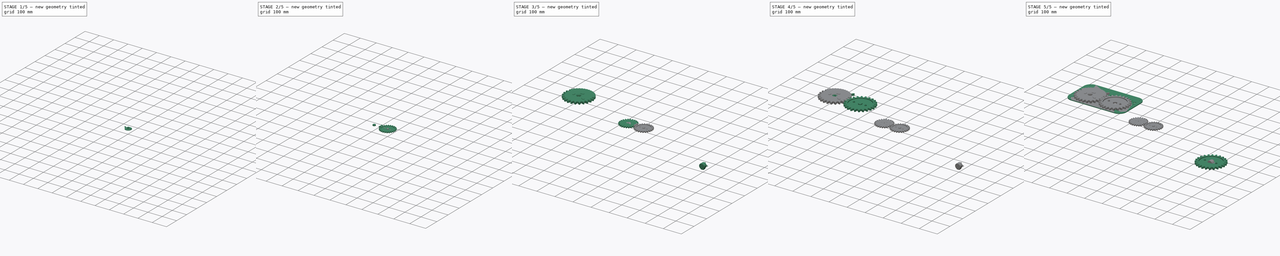
[diagram: build sequence overview — one tinted view per stage of 5, left to right]
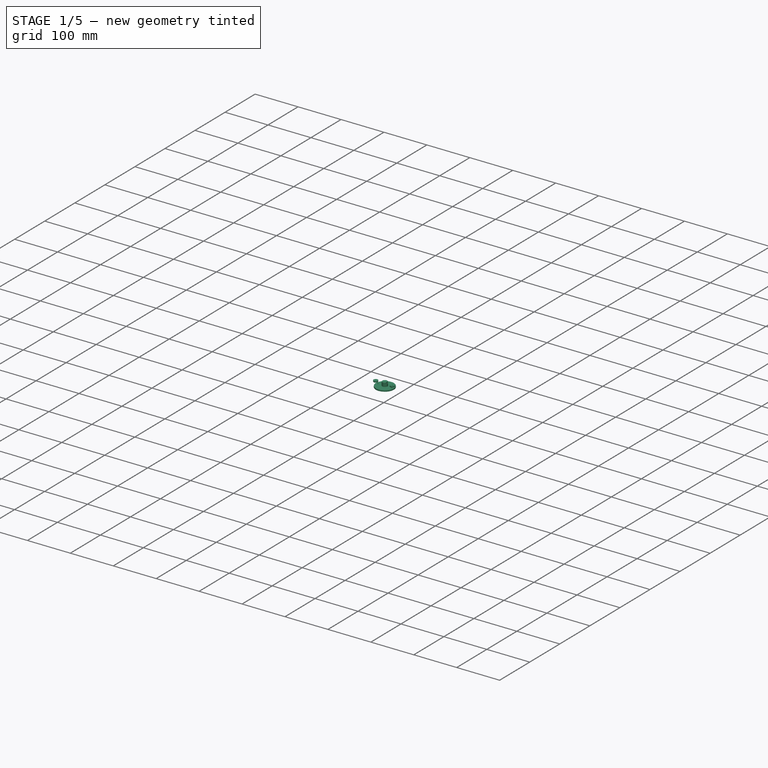
[diagram: stage 1 of 5 — iso view after this stage's code; geometry added in this stage tinted green]
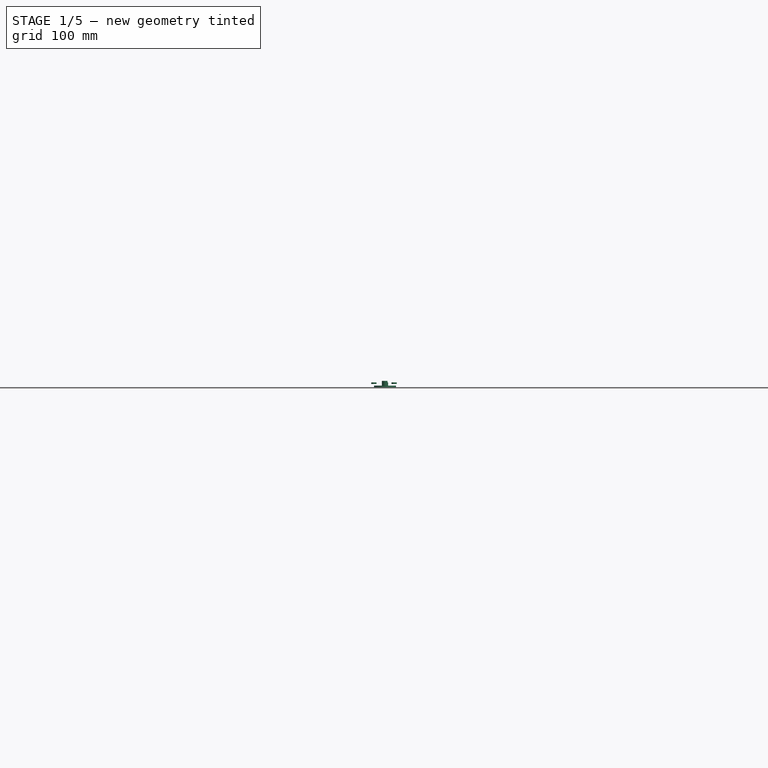
[diagram: stage 1 of 5 — front view after this stage's code; geometry added in this stage tinted green]
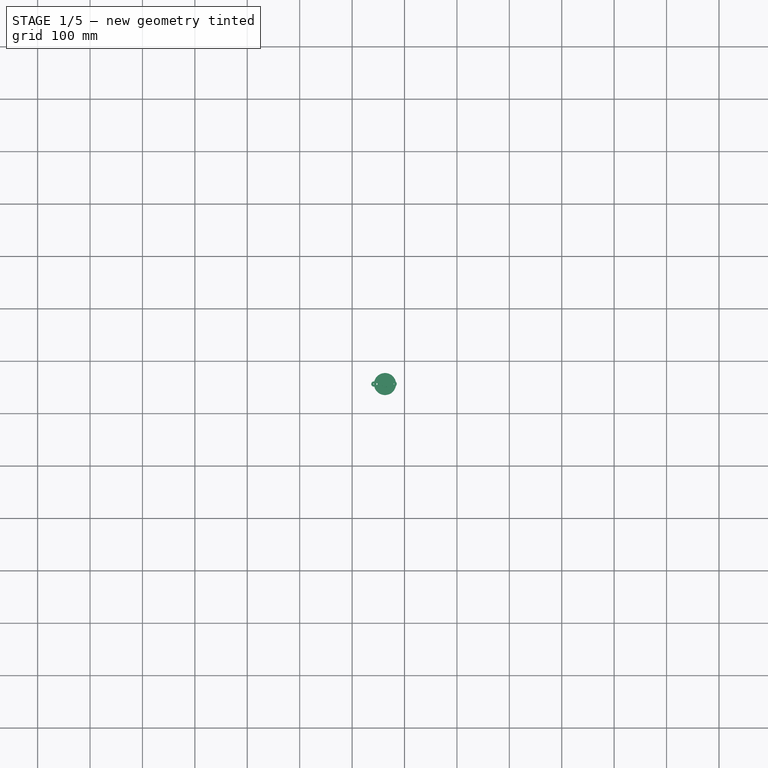
[diagram: stage 1 of 5 — top view after this stage's code; geometry added in this stage tinted green]
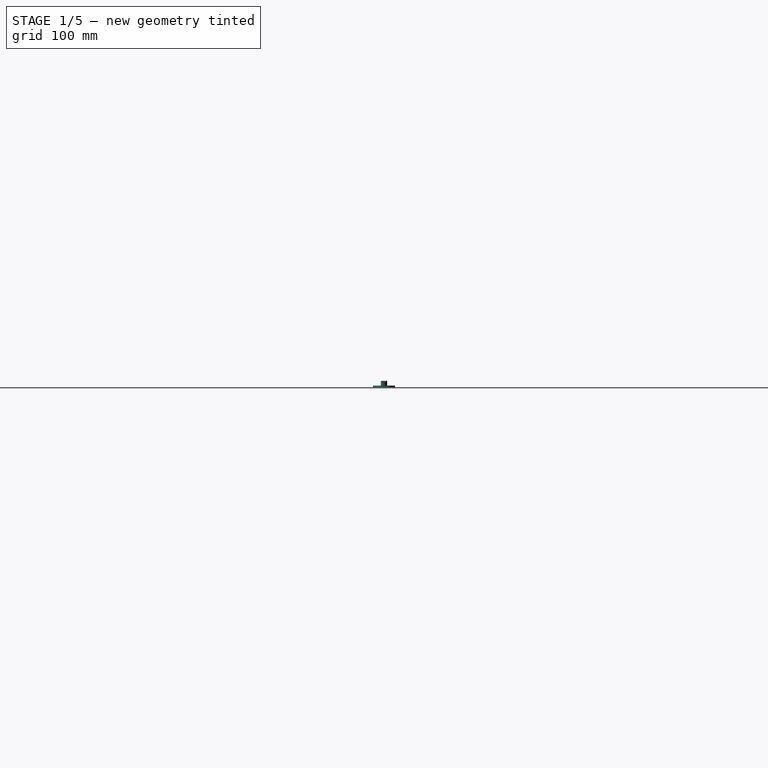
[diagram: stage 1 of 5 — right view after this stage's code; geometry added in this stage tinted green]
FCSTD DOCUMENT  (FreeCAD 0.18R)
Label: OpenClosed
License: All rights reserved
LicenseURL: http://en.wikipedia.org/wiki/All_rights_reserved
objects: Part::Feature×52, Sketcher::SketchObject×18, Part::Extrusion×11, App::Part×8, PartDesign::Body×8, PartDesign::FeatureBase×7, App::DocumentObjectGroup×7, PartDesign::Pocket×5, Part::Cut×4, Part::MultiFuse×4, PartDesign::Pad×3, Part::Compound×2, Part::Part2DObjectPython×1, Part::FeaturePython×1, Part::Cylinder×1, Part::Chamfer×1
note: 126 computed .brp shape members not serialized (recipe doc carries the construction recipe); baked Part::Feature solids carry a one-line shape summary decoded from their .brp

FEATURE [PartDesign::Body] Body009
  BaseFeature = -> Compound001
  Group = -> [BaseFeature006]
  Origin = -> Origin018
  Tip = -> BaseFeature006
FEATURE [App::Part] _8BYJ_049  label="28BYJ-049"
  Group = -> [_8BYJ_48_008,Part__Feature029,Part__Feature033,Part__Feature030,Part__Feature028,Part__Feature037,Compound001,Body009]
  Origin = -> Origin016
  Placement = pos=(-508.7,177.5,-18.15) rot=(0,0.707107,0.707107;3.14159rad)
FEATURE [Part::Extrusion] Extrude002
  Base = -> Sketch009
  Dir = (0,0,-1)
  DirMode = 2
  FaceMakerClass = Part::FaceMakerBullseye
  LengthFwd = 3
  LengthRev = 0
  Solid = true
  Symmetric = false
FEATURE [Part::Cylinder] Cylinder  label="Cilindro"
  Angle = 360
  AttacherType = Attacher::AttachEngine3D
  Height = 10
  Placement = pos=(-437.22,120.04,-5) rot=(0,0,1;0rad)
  Radius = 1.65
FEATURE [App::DocumentObjectGroup] Grupo002  label="bGear1"
  Group = -> [Fusion001]
FEATURE [App::DocumentObjectGroup] Grupo004  label="base"
  Group = -> [Extrude002]
FEATURE [Sketcher::SketchObject] Sketch012
  MapMode = 5
  Placement = pos=(0,0,6) rot=(0,0,1;0rad)
  sketch-geometry (2):
    g0: ArcOfCircle CenterX=-437.217 CenterY=156.543 CenterZ=0 NormalX=0 NormalY=0 NormalZ=1 AngleXU=0 Radius=6 StartAngle=0.665582 EndAngle=5.6176
    g1: LineSegment StartX=-432.497 StartY=160.249 StartZ=0 EndX=-432.497 EndY=152.838 EndZ=0
  constraints (2):
    c: Coincident(g1,g0)
    c: Coincident(g1,g0)
FEATURE [Part::Extrusion] Extrude005
  Base = -> Sketch012
  Dir = (0,0,1)
  DirMode = 2
  FaceMakerClass = Part::FaceMakerBullseye
  LengthFwd = 3
  LengthRev = 0
  Reversed = true
  Solid = true
  Symmetric = false
FEATURE [Sketcher::SketchObject] Sketch013
  ExternalGeometry = -> [Extrude005]
  MapMode = 5
  Placement = pos=(0,0,3) rot=(1,0,0;3.14159rad)
  Support = -> [Extrude005]
  sketch-geometry (1):
    g0: Circle CenterX=-437.217 CenterY=-156.543 CenterZ=0 NormalX=0 NormalY=0 NormalZ=1 AngleXU=0 Radius=6
  constraints (2):
    c: Coincident(g0,g-3)
    c: PointOnObject(g-3,g0)
FEATURE [Part::Extrusion] Extrude006
  Base = -> Sketch013
  Dir = (0,0,-1)
  DirMode = 2
  FaceMakerClass = Part::FaceMakerBullseye
  LengthFwd = 6
  LengthRev = 0
  Solid = true
  Symmetric = false
FEATURE [Sketcher::SketchObject] Sketch014
  ExternalGeometry = -> [Extrude006,Extrude002]
  MapMode = 5
  Placement = pos=(0,0,-3) rot=(1,0,0;3.14159rad)
  Support = -> [Extrude006]
  sketch-geometry (3):
    g0: Circle CenterX=-437.217 CenterY=-156.543 CenterZ=0 NormalX=0 NormalY=0 NormalZ=1 AngleXU=0 Radius=21.0153
    g1: Circle CenterX=-453.217 CenterY=-156.543 CenterZ=0 NormalX=0 NormalY=0 NormalZ=1 AngleXU=0 Radius=1.65
    g2: Circle CenterX=-421.217 CenterY=-156.543 CenterZ=0 NormalX=0 NormalY=0 NormalZ=1 AngleXU=0 Radius=1.65
  constraints (5):
    c: Coincident(g0,g-3)
    c: Coincident(g1,g-4)
    c: Coincident(g2,g-5)
    c: Equal(g2,g1)
    c: Equal(g1,g-4)
FEATURE [Part::Extrusion] Extrude007
  Base = -> Sketch014
  Dir = (0,0,-1)
  DirMode = 2
  FaceMakerClass = Part::FaceMakerBullseye
  LengthFwd = 3
  LengthRev = 0
  Solid = true
  Symmetric = false
FEATURE [Part::MultiFuse] Fusion002
  Refine = true
  Shapes = -> [Extrude007,Extrude006,Extrude005]
FEATURE [Part::Feature] Clone014002001  label="Solid041"
  shape: bbox 94.64 x 92.14 x 10.8 mm, 2402 faces (baked)
FEATURE [Part::Cut] Cut002
  Base = -> Clone014002001
  Refine = true
  Tool = -> Cylinder
FEATURE [Sketcher::SketchObject] Sketch015
  ExternalGeometry = -> [Cut002]
  MapMode = 5
  Placement = pos=(0,0,3) rot=(0,0,1;0rad)
  Support = -> [Cut002]
  sketch-geometry (7):
    g0: Circle [constr] CenterX=-419.775 CenterY=156.55 CenterZ=0 NormalX=0 NormalY=0 NormalZ=1 AngleXU=0 Radius=3.6
    g1: Circle [constr] CenterX=-458.488 CenterY=156.543 CenterZ=0 NormalX=0 NormalY=0 NormalZ=1 AngleXU=0 Radius=3.6
    g2: Circle CenterX=-458.488 CenterY=156.543 CenterZ=0 NormalX=0 NormalY=0 NormalZ=1 AngleXU=0 Radius=1
    g3: Circle CenterX=-458.488 CenterY=156.543 CenterZ=0 NormalX=0 NormalY=0 NormalZ=1 AngleXU=0 Radius=5
    g4: Circle CenterX=-419.775 CenterY=156.55 CenterZ=0 NormalX=0 NormalY=0 NormalZ=1 AngleXU=0 Radius=5
    g5: Circle CenterX=-419.775 CenterY=156.55 CenterZ=0 NormalX=0 NormalY=0 NormalZ=1 AngleXU=0 Radius=1
    g6: Circle [constr] CenterX=-419.775 CenterY=156.55 CenterZ=0 NormalX=0 NormalY=0 NormalZ=1 AngleXU=0 Radius=3
  constraints (19):
    c: PointOnObject(g-6,g0)
    c: PointOnObject(g-8,g0)
    c: PointOnObject(g-7,g0)
    c: Radius(g0) = 3.6
    c: PointOnObject(g-4,g1)
    c: PointOnObject(g-5,g1)
    c: PointOnObject(g-3,g1)
    c: Coincident(g2,g1)
    c: Coincident(g3,g2)
    c: Coincident(g4,g0)
    c: Coincident(g5,g4)
    c: Radius(g2) = 1
    c: Equal(g2,g5)
    c: Radius(g3) = 5
    c: Equal(g3,g4)
    c: PointOnObject(g-11,g6)
    c: PointOnObject(g-9,g6)
    c: PointOnObject(g-10,g6)
    c: Radius(g6) = 3
FEATURE [Part::Extrusion] Extrude008
  Base = -> Sketch015
  Dir = (0,0,1)
  DirMode = 2
  FaceMakerClass = Part::FaceMakerBullseye
  LengthFwd = 3
  LengthRev = 0
  Reversed = true
  Solid = true
  Symmetric = false
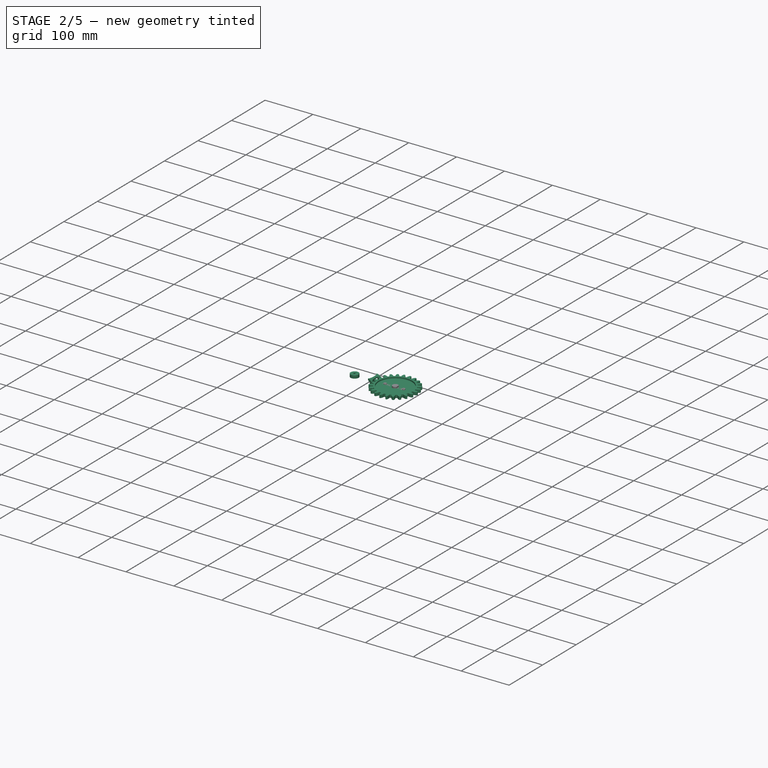
[diagram: stage 2 of 5 — iso view after this stage's code; geometry added in this stage tinted green]
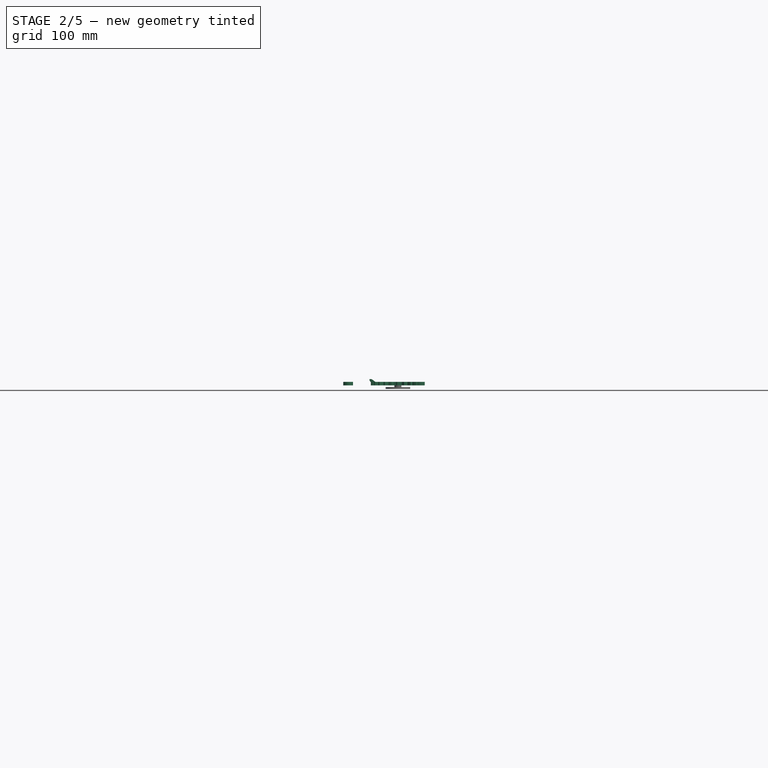
[diagram: stage 2 of 5 — front view after this stage's code; geometry added in this stage tinted green]
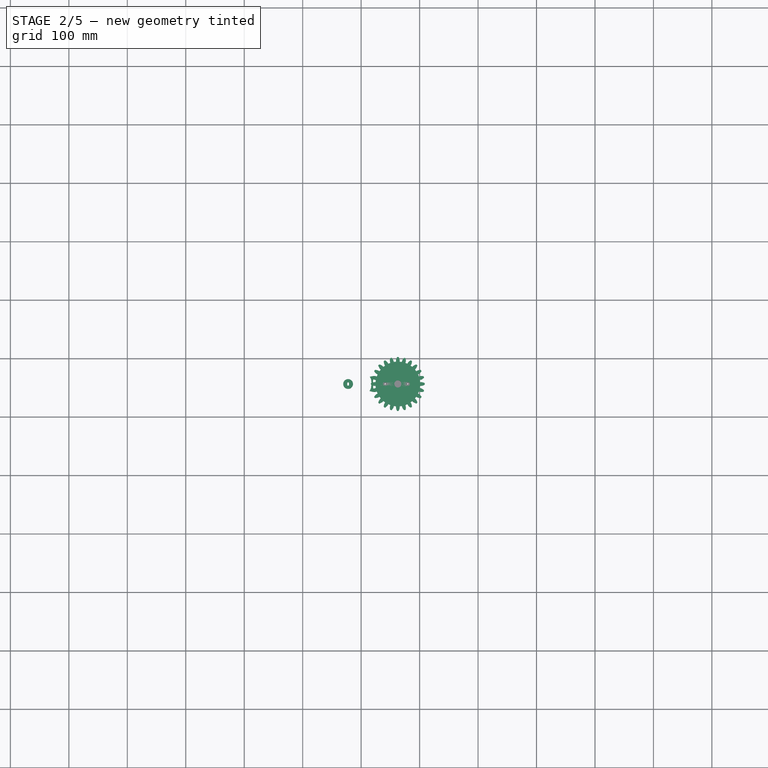
[diagram: stage 2 of 5 — top view after this stage's code; geometry added in this stage tinted green]
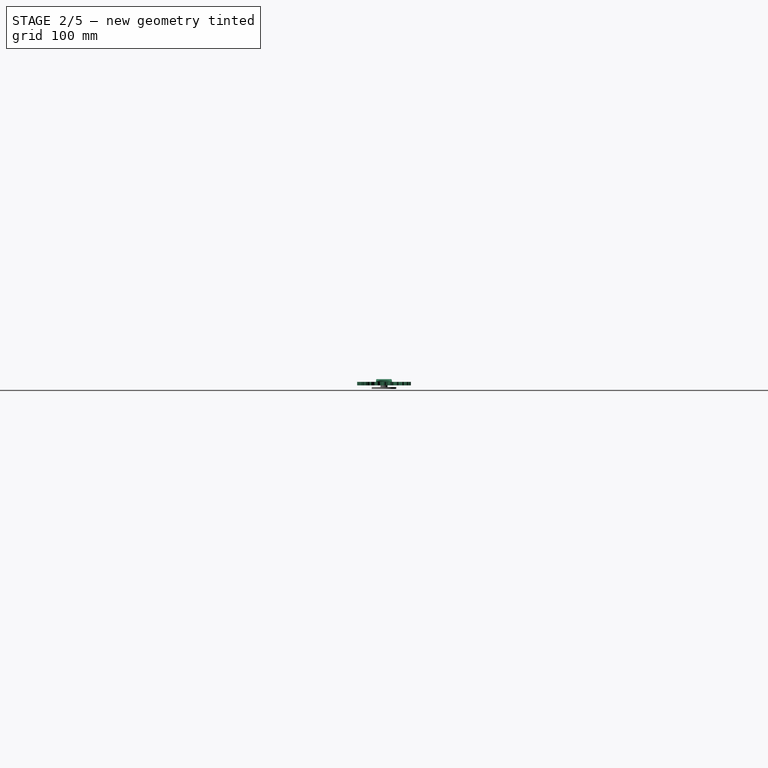
[diagram: stage 2 of 5 — right view after this stage's code; geometry added in this stage tinted green]
FEATURE [Sketcher::SketchObject] Sketch010
  ExternalGeometry = -> [Clone006001]
  MapMode = 5
  Placement = pos=(0,0,6) rot=(0,0,1;0rad)
  Support = -> [Clone006001]
  sketch-geometry (10):
    g0: Circle [constr] CenterX=-522.303 CenterY=156.543 CenterZ=0 NormalX=0 NormalY=0 NormalZ=1 AngleXU=0 Radius=7.32001
    g1: Circle CenterX=-522.303 CenterY=156.543 CenterZ=0 NormalX=0 NormalY=0 NormalZ=1 AngleXU=0 Radius=8.37769
    g2: LineSegment [constr] StartX=-523.853 StartY=158.815 StartZ=0 EndX=-520.753 EndY=158.815 EndZ=0
    g3: LineSegment StartX=-520.753 StartY=158.815 StartZ=0 EndX=-520.753 EndY=154.272 EndZ=0
    g4: LineSegment [constr] StartX=-520.753 StartY=154.272 StartZ=0 EndX=-523.853 EndY=154.272 EndZ=0
    g5: LineSegment [constr] StartX=-520.753 StartY=158.815 StartZ=0 EndX=-522.303 EndY=156.543 EndZ=0
    g6: LineSegment [constr] StartX=-522.303 StartY=156.543 StartZ=0 EndX=-523.853 EndY=154.272 EndZ=0
    g7: ArcOfCircle CenterX=-522.303 CenterY=156.543 CenterZ=0 NormalX=0 NormalY=0 NormalZ=1 AngleXU=0 Radius=2.75 StartAngle=0.972015 EndAngle=2.16958
    g8: ArcOfCircle CenterX=-522.303 CenterY=156.543 CenterZ=0 NormalX=0 NormalY=0 NormalZ=1 AngleXU=0 Radius=2.75 StartAngle=4.11361 EndAngle=5.31117
    g9: LineSegment StartX=-523.853 StartY=158.815 StartZ=0 EndX=-523.853 EndY=154.272 EndZ=0
  constraints (24):
    c: PointOnObject(g-5,g0)
    c: PointOnObject(g-4,g0)
    c: PointOnObject(g-3,g0)
    c: Coincident(g1,g0)
    c: Coincident(g2,g3)
    c: Coincident(g3,g4)
    c: Horizontal(g2)
    c: Horizontal(g4)
    c: Vertical(g3)
    c: Coincident(g5,g2)
    c: Coincident(g6,g5)
    c: Coincident(g6,g4)
    c: Equal(g5,g6)
    c: Coincident(g7,g5)
    c: Coincident(g7,g2)
    c: Coincident(g7,g2)
    c: Coincident(g8,g7)
    c: Coincident(g8,g4)
    c: Coincident(g8,g3)
    c: Distance(g2) = 3.1
    c: Radius(g8) = 2.75
    c: Coincident(g0,g5)
    c: Coincident(g9,g7)
    c: Coincident(g9,g8)
FEATURE [Part::Extrusion] Extrude003
  Base = -> Sketch010
  Dir = (0,0,1)
  DirMode = 2
  FaceMakerClass = Part::FaceMakerBullseye
  LengthFwd = 6
  LengthRev = 0
  Reversed = true
  Solid = true
  Symmetric = false
FEATURE [Part::Cut] Cut001
  Base = -> Clone010001
  Refine = true
  Tool = -> Cylinder
FEATURE [Part::MultiFuse] Fusion
  Refine = true
  Shapes = -> [Extrude008,Cut002]
FEATURE [Sketcher::SketchObject] Sketch016
  ExternalGeometry = -> [Fusion]
  MapMode = 5
  Placement = pos=(0,0,3) rot=(0,0,1;0rad)
  Support = -> [Fusion]
  sketch-geometry (3):
    g0: LineSegment [constr] StartX=-459.288 StartY=156.55 StartZ=0 EndX=-418.975 EndY=156.55 EndZ=0
    g1: Circle CenterX=-459.288 CenterY=156.55 CenterZ=0 NormalX=0 NormalY=0 NormalZ=1 AngleXU=0 Radius=3
    g2: Circle CenterX=-418.975 CenterY=156.55 CenterZ=0 NormalX=0 NormalY=0 NormalZ=1 AngleXU=0 Radius=3
  constraints (8):
    c: Horizontal(g0)
    c: PointOnObject(g-4,g0)
    c: Coincident(g1,g0)
    c: Coincident(g2,g0)
    c: Radius(g2) = 3
    c: Equal(g2,g1)
    c: Distance(g-3,g1) = 0.8
    c: Distance(g-4,g2) = 0.8
FEATURE [Part::Extrusion] Extrude009
  Base = -> Sketch016
  Dir = (0,0,1)
  DirMode = 2
  FaceMakerClass = Part::FaceMakerBullseye
  LengthFwd = 10
  LengthRev = 0
  Reversed = true
  Solid = true
  Symmetric = false
FEATURE [Part::Cut] Cut003
  Base = -> Fusion
  Refine = true
  Tool = -> Extrude009
FEATURE [Part::Chamfer] Chamfer
  Base = -> Cut003
  Edges = 2 edges r=0.4: [Edge2803,Edge2922]
FEATURE [Sketcher::SketchObject] Sketch017
  ExternalGeometry = -> [Chamfer]
  MapMode = 5
  Placement = pos=(0,0,-5.886e-13) rot=(1,0,0;3.14159rad)
  Support = -> [Chamfer]
  sketch-geometry (12):
    g0: LineSegment StartX=-479.31 StartY=-148.013 StartZ=0 EndX=-480.759 EndY=-146.965 EndZ=0
    g1: LineSegment StartX=-480.759 StartY=-146.965 StartZ=0 EndX=-482.046 EndY=-145.844 EndZ=0
    g2: LineSegment StartX=-482.046 StartY=-145.844 StartZ=0 EndX=-481.39 EndY=-143.394 EndZ=0
    g3: LineSegment StartX=-481.39 StartY=-143.394 StartZ=0 EndX=-479.381 EndY=-143.02 EndZ=0
    g4: LineSegment StartX=-479.381 StartY=-143.02 StartZ=0 EndX=-477.825 EndY=-142.879 EndZ=0
    g5: LineSegment StartX=-477.825 StartY=-142.879 StartZ=0 EndX=-479.31 EndY=-148.013 EndZ=0
    g6: LineSegment StartX=-479.217 StartY=-165.014 StartZ=0 EndX=-480.494 EndY=-165.914 EndZ=0
    g7: LineSegment StartX=-480.494 StartY=-165.914 StartZ=0 EndX=-482.046 EndY=-167.243 EndZ=0
    g8: LineSegment StartX=-482.046 StartY=-167.243 StartZ=0 EndX=-481.39 EndY=-169.693 EndZ=0
    g9: LineSegment StartX=-481.39 StartY=-169.693 StartZ=0 EndX=-479.715 EndY=-170.019 EndZ=0
    g10: LineSegment StartX=-479.715 StartY=-170.019 StartZ=0 EndX=-477.936 EndY=-170.203 EndZ=0
    g11: LineSegment StartX=-477.936 StartY=-170.203 StartZ=0 EndX=-479.217 EndY=-165.014 EndZ=0
  constraints (24):
    c: Coincident(g0,g-7)
    c: Coincident(g0,g1)
    c: Coincident(g1,g-4)
    c: Coincident(g1,g2)
    c: Coincident(g2,g-5)
    c: Coincident(g2,g3)
    c: Coincident(g3,g-6)
    c: Coincident(g3,g4)
    c: Coincident(g4,g5)
    c: Coincident(g5,g0)
    c: Coincident(g0,g-7)
    c: Coincident(g4,g-6)
    c: Coincident(g-11,g6)
    c: Coincident(g6,g-12)
    c: Coincident(g6,g7)
    c: Coincident(g7,g-13)
    c: Coincident(g7,g8)
    c: Coincident(g8,g-13)
    c: Coincident(g8,g9)
    c: Coincident(g9,g-10)
    c: Coincident(g9,g10)
    c: Coincident(g10,g-10)
    c: Coincident(g10,g11)
    c: Coincident(g11,g6)
FEATURE [Part::Extrusion] Extrude010
  Base = -> Sketch017
  Dir = (0,3.8e-15,-1)
  DirMode = 2
  FaceMakerClass = Part::FaceMakerBullseye
  LengthFwd = 7
  LengthRev = 0
  Reversed = true
  Solid = true
  Symmetric = false
FEATURE [Part::MultiFuse] Fusion003
  Refine = true
  Shapes = -> [Extrude010,Chamfer]
FEATURE [App::DocumentObjectGroup] Grupo003  label="bGear2"
  Group = -> [Cut001,Fusion003]
FEATURE [App::DocumentObjectGroup] Grupo005  label="Planetario"
  Group = -> [Fusion002,Clone011001,Clone014001,Clone009001,Clone012001,Clone008001]
FEATURE [App::DocumentObjectGroup] Grupo006  label="Letras"
  Group = -> [Clone007001,Clone001001,Clone015,Clone003001,Clone005001,Clone002001]
FEATURE [App::DocumentObjectGroup] Grupo001  label="V2-Compacta"
  Group = -> [Sketch009,Sketch010,Grupo002,Grupo003,Grupo004,Grupo005,Grupo006]
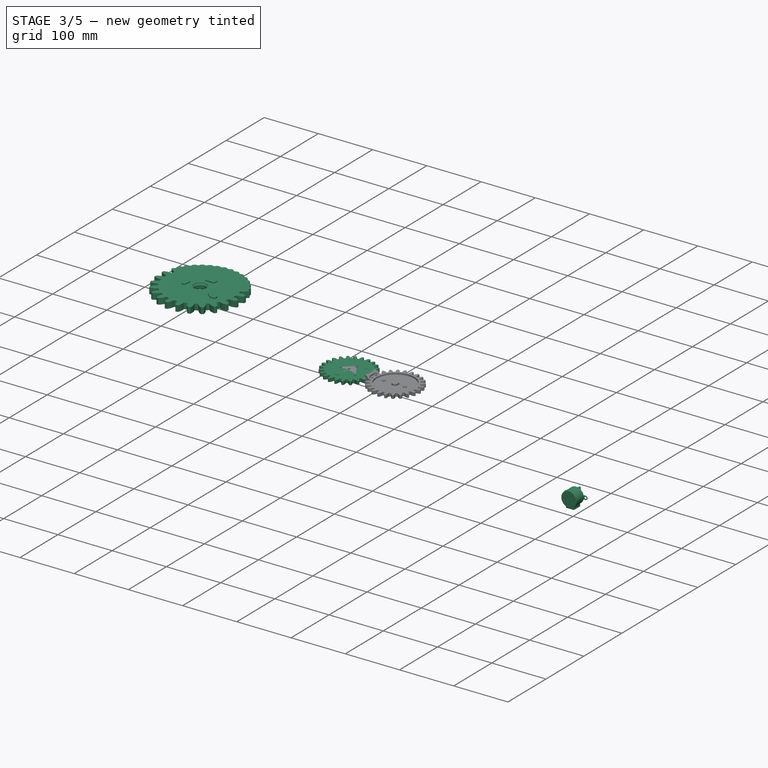
[diagram: stage 3 of 5 — iso view after this stage's code; geometry added in this stage tinted green]
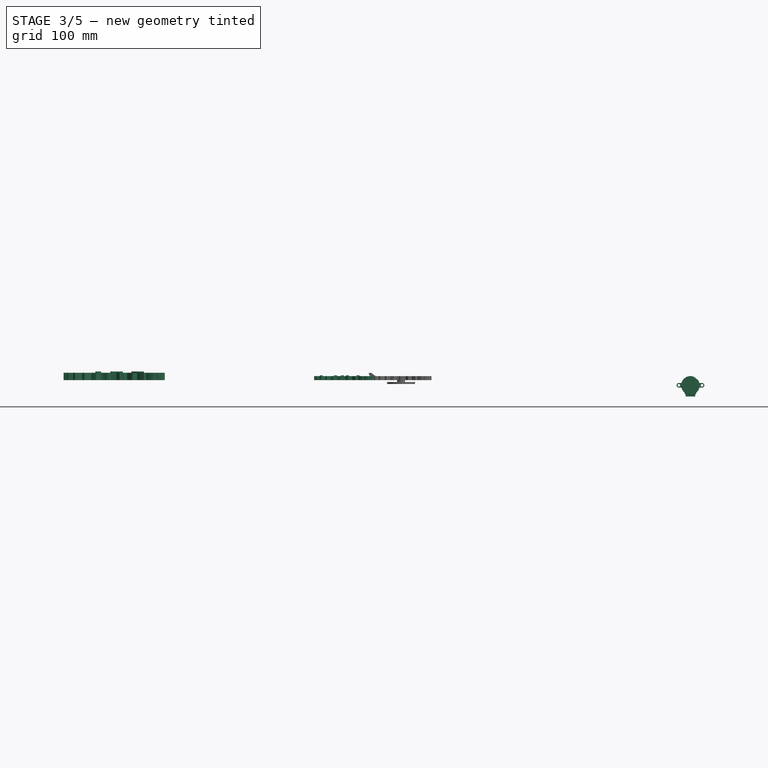
[diagram: stage 3 of 5 — front view after this stage's code; geometry added in this stage tinted green]
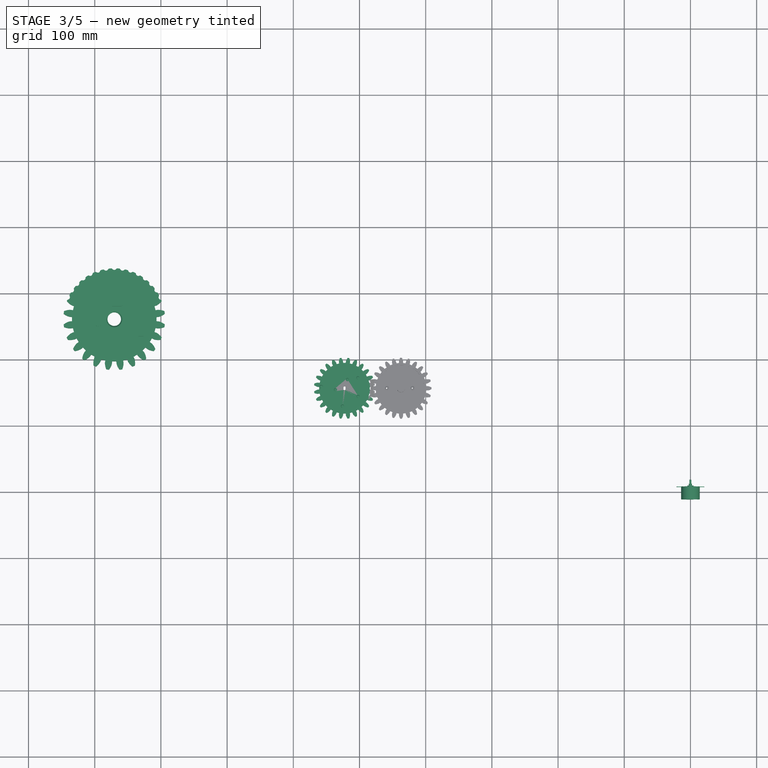
[diagram: stage 3 of 5 — top view after this stage's code; geometry added in this stage tinted green]
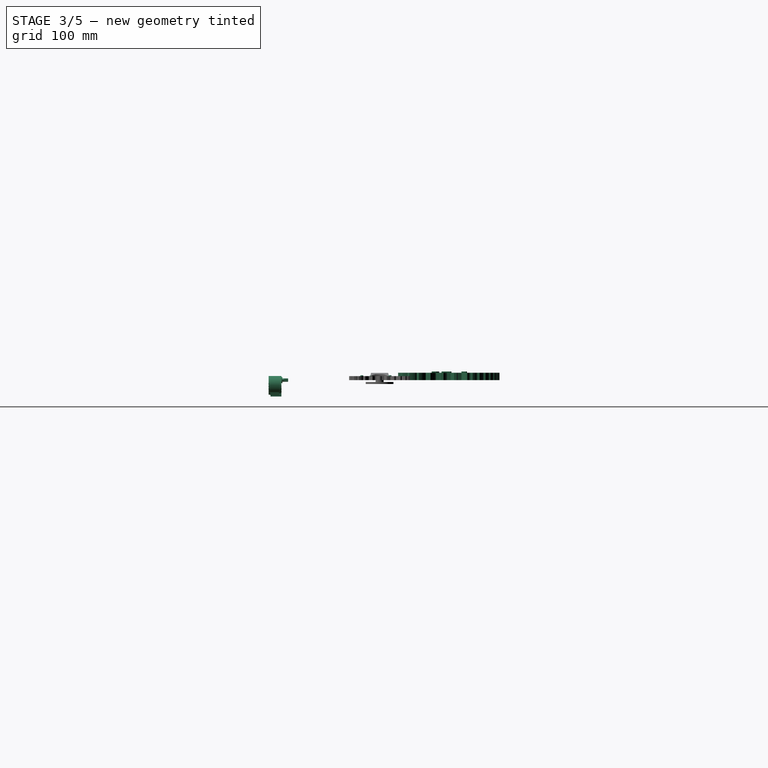
[diagram: stage 3 of 5 — right view after this stage's code; geometry added in this stage tinted green]
FEATURE [PartDesign::FeatureBase] BaseFeature004
  BaseFeature = -> Part__Feature
FEATURE [PartDesign::Body] Body008
  BaseFeature = -> Part__Feature001
  Group = -> [BaseFeature005,Sketch006,Pocket003]
  Origin = -> Origin014
  Tip = -> Pocket003
FEATURE [Sketcher::SketchObject] Sketch007
  ExternalGeometry = -> [BaseFeature004]
  MapMode = 5
  Placement = pos=(0,0,0) rot=(1,0,0;3.14159rad)
  Support = -> [BaseFeature004]
  sketch-geometry (2):
    g0: Circle CenterX=-870.506 CenterY=-260.906 CenterZ=0 NormalX=0 NormalY=0 NormalZ=1 AngleXU=0 Radius=14
    g1: Circle CenterX=-870.506 CenterY=-260.906 CenterZ=0 NormalX=0 NormalY=0 NormalZ=1 AngleXU=0 Radius=22
  constraints (4):
    c: Coincident(g0,g-3)
    c: Coincident(g1,g0)
    c: Radius(g1) = 22
    c: Radius(g0) = 14
FEATURE [PartDesign::Pocket] Pocket004
  BaseFeature = -> BaseFeature004
  Length = 3
  Length2 = 100
  Profile = -> Sketch007
  Refine = true
  Type = 0
FEATURE [PartDesign::Body] Body007
  BaseFeature = -> Part__Feature
  Group = -> [BaseFeature004,Sketch007,Pocket004,Sketch008,Pad002]
  Origin = -> Origin013
  Tip = -> Pad002
FEATURE [App::Part] Final_v13  label="Final v13"
  Group = -> [Part__Feature002,Part__Feature003,Part__Feature004,Base,Part__Feature007,Part__Feature008,Part__Feature009,Part__Feature010,Part__Feature011,Part__Feature,Body007,Part__Feature001,Body008]
  Origin = -> Origin001
FEATURE [App::DocumentObjectGroup] Grupo  label="V1"
  Group = -> [Final_v13,_8BYJ_48,Clone,Part,Extrude001,Jann62E009ACvm44]
FEATURE [Part::Feature] Clone015  label="c"
  Placement = pos=(-0.35,0,0) rot=(0,0,1;0rad)
  shape: bbox 28.32 x 37.1 x 2.4 mm, 493 faces (baked)
FEATURE [Part::Feature] Clone002001  label="l"
  shape: bbox 18.24 x 57.17 x 2.4 mm, 470 faces (baked)
FEATURE [Part::Feature] Clone001001  label="n"
  shape: bbox 34.71 x 32.83 x 2.4 mm, 355 faces (baked)
FEATURE [Part::Feature] Clone005001  label="o"
  Placement = pos=(-0.35,0,0) rot=(0,0,1;0rad)
  shape: bbox 31.54 x 36.72 x 2.4 mm, 478 faces (baked)
FEATURE [Part::Feature] Clone006001  label="Solid034"
  shape: bbox 91.69 x 91.69 x 7.2 mm, 1901 faces (baked)
FEATURE [Part::Feature] Clone003001  label="e"
  shape: bbox 31.32 x 36.66 x 2.4 mm, 363 faces (baked)
FEATURE [Part::Feature] Clone009001  label="sGear2"
  shape: bbox 16.72 x 16.72 x 4.2 mm, 746 faces (baked)
FEATURE [Part::Feature] Clone007001  label="p"
  shape: bbox 48.11 x 57.25 x 2.4 mm, 982 faces (baked)
FEATURE [Part::Feature] Clone008001  label="pin3"
  shape: bbox 7.44 x 7.429 x 6 mm, 344 faces (baked)
FEATURE [Part::Feature] Clone012001  label="pin2"
  shape: bbox 7.44 x 7.429 x 6 mm, 345 faces (baked)
FEATURE [Part::Feature] Clone011001  label="sGear3"
  shape: bbox 24.23 x 24.23 x 4.2 mm, 706 faces (baked)
FEATURE [Part::Feature] Clone010001  label="Solid039"
  shape: bbox 94.64 x 92.14 x 10.8 mm, 2577 faces (baked)
FEATURE [Part::Feature] Clone014001  label="sGear1"
  shape: bbox 24.79 x 24.79 x 3 mm, 355 faces (baked)
FEATURE [Sketcher::SketchObject] Sketch009
  ExternalGeometry = -> [Clone006001,Clone010001]
  MapMode = 5
  Placement = pos=(0,0,0) rot=(1,0,0;3.14159rad)
  Support = -> [Clone006001]
  sketch-geometry (23):
    g0: Circle [constr] CenterX=-437.217 CenterY=-156.543 CenterZ=0 NormalX=0 NormalY=0 NormalZ=1 AngleXU=0 Radius=6.71998
    g1: Circle [constr] CenterX=-522.303 CenterY=-156.543 CenterZ=0 NormalX=0 NormalY=0 NormalZ=1 AngleXU=0 Radius=6.12
    g2: ArcOfCircle CenterX=-522.717 CenterY=-156.543 CenterZ=0 NormalX=0 NormalY=0 NormalZ=1 AngleXU=0 Radius=50 StartAngle=1.5708 EndAngle=4.71239
    g3: ArcOfCircle CenterX=-437.217 CenterY=-156.543 CenterZ=0 NormalX=0 NormalY=0 NormalZ=1 AngleXU=0 Radius=50 StartAngle=4.71239 EndAngle=7.85398
    g4: LineSegment StartX=-522.717 StartY=-206.543 StartZ=0 EndX=-437.217 EndY=-206.543 EndZ=0
    g5: LineSegment StartX=-522.717 StartY=-106.543 StartZ=0 EndX=-437.217 EndY=-106.543 EndZ=0
    g6: LineSegment [constr] StartX=-387.217 StartY=-156.543 StartZ=0 EndX=-572.717 EndY=-156.543 EndZ=0
    g7: Circle CenterX=-437.217 CenterY=-156.543 CenterZ=0 NormalX=0 NormalY=0 NormalZ=1 AngleXU=0 Radius=10
    g8: Circle CenterX=-522.717 CenterY=-156.543 CenterZ=0 NormalX=0 NormalY=0 NormalZ=1 AngleXU=0 Radius=5
    g9: Circle CenterX=-540.187 CenterY=-148.645 CenterZ=0 NormalX=0 NormalY=0 NormalZ=1 AngleXU=0 Radius=2.1
    g10: Circle CenterX=-505.184 CenterY=-148.645 CenterZ=0 NormalX=0 NormalY=0 NormalZ=1 AngleXU=0 Radius=2.1
    g11: LineSegment [constr] StartX=-540.187 StartY=-148.645 StartZ=0 EndX=-505.184 EndY=-148.645 EndZ=0
    g12: Circle CenterX=-453.217 CenterY=-156.543 CenterZ=0 NormalX=0 NormalY=0 NormalZ=1 AngleXU=0 Radius=1.65
    g13: Circle CenterX=-421.217 CenterY=-156.543 CenterZ=0 NormalX=0 NormalY=0 NormalZ=1 AngleXU=0 Radius=1.65
    g14: ArcOfCircle CenterX=-437.217 CenterY=-156.543 CenterZ=0 NormalX=0 NormalY=0 NormalZ=1 AngleXU=0 Radius=39 StartAngle=1.39626 EndAngle=4.88692
    g15: ArcOfCircle CenterX=-437.217 CenterY=-156.543 CenterZ=0 NormalX=0 NormalY=0 NormalZ=1 AngleXU=0 Radius=34 StartAngle=1.39626 EndAngle=4.88692
    g16: ArcOfCircle CenterX=-430.878 CenterY=-120.598 CenterZ=0 NormalX=0 NormalY=0 NormalZ=1 AngleXU=0 Radius=2.5 StartAngle=4.53786 EndAngle=7.67945
    g17: ArcOfCircle CenterX=-430.878 CenterY=-192.489 CenterZ=0 NormalX=0 NormalY=0 NormalZ=1 AngleXU=0 Radius=2.5 StartAngle=4.88692 EndAngle=8.02851
    g18: LineSegment [constr] StartX=-437.217 StartY=-156.543 StartZ=0 EndX=-431.313 EndY=-123.06 EndZ=0
    g19: LineSegment [constr] StartX=-431.313 StartY=-123.06 StartZ=0 EndX=-430.444 EndY=-118.136 EndZ=0
    g20: LineSegment [constr] StartX=-437.217 StartY=-156.543 StartZ=0 EndX=-430.878 EndY=-192.489 EndZ=0
    g21: LineSegment [constr] StartX=-430.878 StartY=-120.598 StartZ=0 EndX=-387.217 EndY=-156.543 EndZ=0
    g22: LineSegment [constr] StartX=-387.217 StartY=-156.543 StartZ=0 EndX=-430.878 EndY=-192.489 EndZ=0
  constraints (56):
    c: PointOnObject(g-8,g0)
    c: PointOnObject(g-9,g0)
    c: PointOnObject(g-7,g0)
    c: PointOnObject(g-5,g1)
    c: PointOnObject(g-3,g1)
    c: PointOnObject(g-4,g1)
    c: Tangent(g2,g5) = 1.5708
    c: Tangent(g2,g4) = -1.5708
    c: Tangent(g4,g3) = -1.5708
    c: Tangent(g5,g3) = 1.5708
    c: Horizontal(g4)
    c: Equal(g2,g3)
    c: Coincident(g0,g3)
    c: Distance(g2,g3) = 85.5
    c: Distance(g2,g2) = 100
    c: PointOnObject(g6,g3)
    c: PointOnObject(g6,g2)
    c: Horizontal(g6)
    c: PointOnObject(g3,g6)
    c: Distance(g6) = 185.5
    c: Coincident(g7,g3)
    c: Coincident(g8,g2)
    c: Radius(g7) = 10
    c: Radius(g8) = 5
    c: Coincident(g11,g9)
    c: Coincident(g11,g10)
    c: Horizontal(g11)
    c: Radius(g10) = 2.1
    c: Equal(g10,g9)
    c: PointOnObject(g12,g6)
    c: PointOnObject(g13,g6)
    c: Radius(g13) = 1.65
    c: Equal(g13,g12)
    c: Distance(g12,g3) = 16
    c: Distance(g3,g13) = 16
    c: Coincident(g14,g3)
    c: Coincident(g15,g3)
    c: Tangent(g17,g15) = 1.5708
    c: Tangent(g14,g17) = -1.5708
    c: Tangent(g14,g16) = -1.5708
    c: Tangent(g15,g16) = 1.5708
    c: PointOnObject(g18,g6)
    c: Coincident(g18,g15)
    c: Coincident(g19,g15)
    c: Coincident(g19,g14)
    c: Distance(g19) = 5
    c: Parallel(g19,g18)
    c: Coincident(g20,g3)
    c: Coincident(g20,g17)
    c: Angle(g18,g20) = 3.49066
    c: Radius(g14) = 39
    c: Coincident(g21,g16)
    c: Coincident(g21,g6)
    c: Coincident(g22,g6)
    c: Coincident(g22,g17)
    c: Equal(g22,g21)
FEATURE [Part::Feature] Part__Feature028  label="28BYJ-48-013"
  Placement = pos=(0,-10.6,-7.9) rot=(0,0,1;0rad)
  shape: bbox 28.73 x 19.65 x 28.36 mm, 514 faces (baked)
FEATURE [Part::Feature] Part__Feature029  label="28BYJ-48-014"
  Placement = pos=(-0.06,0.351694,0) rot=(0,0,1;0rad)
  shape: bbox 5 x 18 x 5 mm, 11 faces (baked)
FEATURE [Part::Feature] Part__Feature030  label="28BYJ-48-015"
  Placement = pos=(0,7.4,-7.9) rot=(0,0,1;0rad)
  shape: bbox 42 x 2.3 x 29.5 mm, 37 faces (baked)
FEATURE [Part::Feature] Part__Feature031  label="28BYJ-48-016"
  Placement = pos=(-1.65e-13,5.7,-23.8765) rot=(0,1,0;3.14159rad)
  shape: bbox 0.9 x 0.9 x 18 mm, 7 faces (baked)
FEATURE [Part::Feature] Part__Feature032  label="28BYJ-48-017"
  Placement = pos=(-1.65e-13,5.7,-23.8765) rot=(0,1,0;3.14159rad)
  shape: bbox 0.9 x 0.9 x 18 mm, 7 faces (baked)
FEATURE [Part::Feature] Part__Feature033  label="28BYJ-48-018"
  Placement = pos=(0,-0.5,0) rot=(0,0,1;0rad)
  shape: bbox 7.6 x 10 x 7.6 mm, 6 faces (baked)
FEATURE [Part::Feature] Part__Feature034  label="28BYJ-48-019"
  Placement = pos=(-1.65e-13,5.7,-23.8765) rot=(0,1,0;3.14159rad)
  shape: bbox 0.9 x 0.9 x 18 mm, 7 faces (baked)
FEATURE [Part::Feature] Part__Feature035  label="28BYJ-48-020"
  Placement = pos=(-1.65e-13,5.7,-23.8765) rot=(0,1,0;3.14159rad)
  shape: bbox 0.9 x 0.9 x 18 mm, 7 faces (baked)
FEATURE [Part::Feature] Part__Feature036  label="28BYJ-48-021"
  Placement = pos=(-1.65e-13,5.7,-23.8765) rot=(0,1,0;3.14159rad)
  shape: bbox 0.9 x 0.9 x 18 mm, 7 faces (baked)
FEATURE [App::Part] _8BYJ_48_008  label="28BYJ-48-022"
  Group = -> [Part__Feature032,Part__Feature036,Part__Feature031,Part__Feature035,Part__Feature034]
  Origin = -> Origin017
FEATURE [Part::Feature] Part__Feature037  label="28BYJ-48-023"
  Placement = pos=(-2.59e-13,-0.05,-24.8765) rot=(0,-1,0;1.5708rad)
  shape: bbox 18.97 x 17.5 x 6.008 mm, 89 faces (baked)
FEATURE [Part::Compound] Compound001
  Links = -> [Part__Feature029,Part__Feature028,Part__Feature030,Part__Feature033,Part__Feature037]
  Placement = pos=(14,7,-21) rot=(0,0,1;0rad)
FEATURE [PartDesign::FeatureBase] BaseFeature006
  BaseFeature = -> Compound001
FEATURE [Sketcher::SketchObject] Sketch011
  ExternalGeometry = -> [Extrude003]
  MapMode = 5
  Placement = pos=(0,0,9e-16) rot=(1,0,0;3.14159rad)
  Support = -> [Extrude003]
  sketch-geometry (1):
    g0: Circle CenterX=-522.303 CenterY=-156.543 CenterZ=0 NormalX=0 NormalY=0 NormalZ=1 AngleXU=0 Radius=2.8
  constraints (2):
    c: Coincident(g0,g-3)
    c: Radius(g0) = 2.8
FEATURE [Part::Extrusion] Extrude004
  Base = -> Sketch011
  Dir = (0,0,-1)
  DirMode = 2
  FaceMakerClass = Part::FaceMakerBullseye
  LengthFwd = 3
  LengthRev = 0
  Reversed = true
  Solid = true
  Symmetric = false
FEATURE [Part::Cut] Cut
  Base = -> Extrude003
  Refine = true
  Tool = -> Extrude004
FEATURE [Part::MultiFuse] Fusion001  label="Gear1"
  Placement = pos=(-0.35,0,0) rot=(0,0,1;0rad)
  Refine = true
  Shapes = -> [Cut,Clone006001]
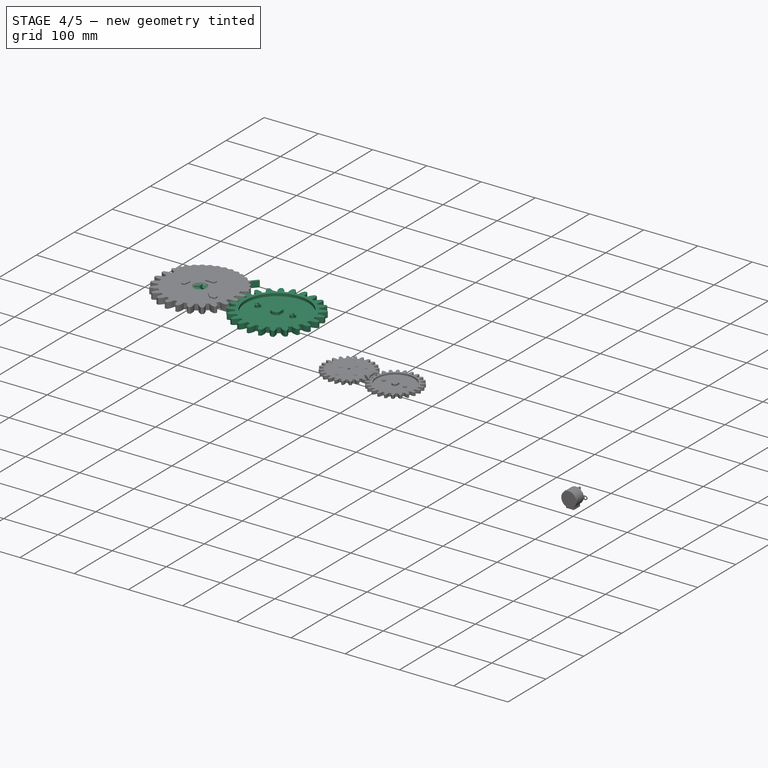
[diagram: stage 4 of 5 — iso view after this stage's code; geometry added in this stage tinted green]
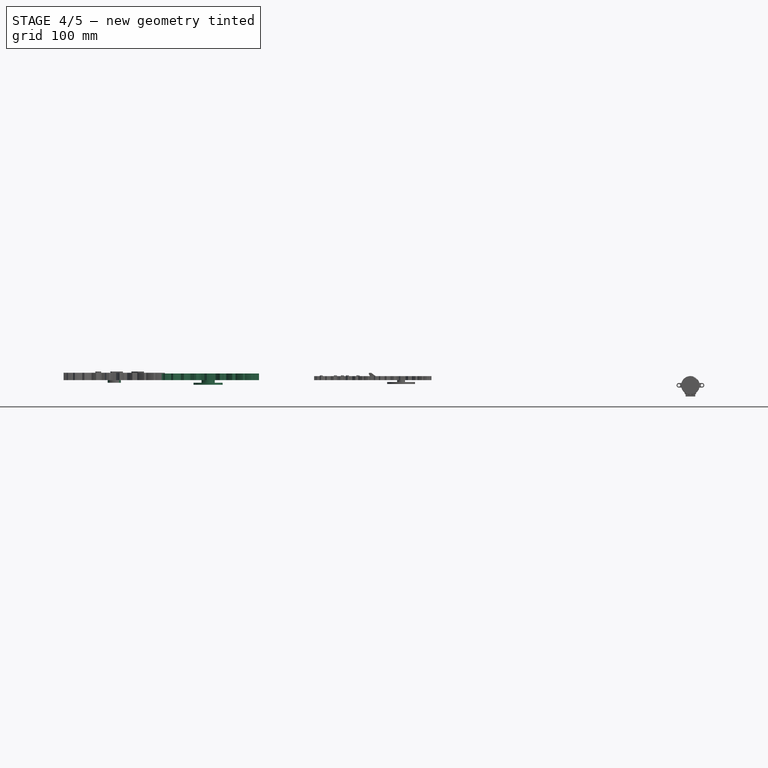
[diagram: stage 4 of 5 — front view after this stage's code; geometry added in this stage tinted green]
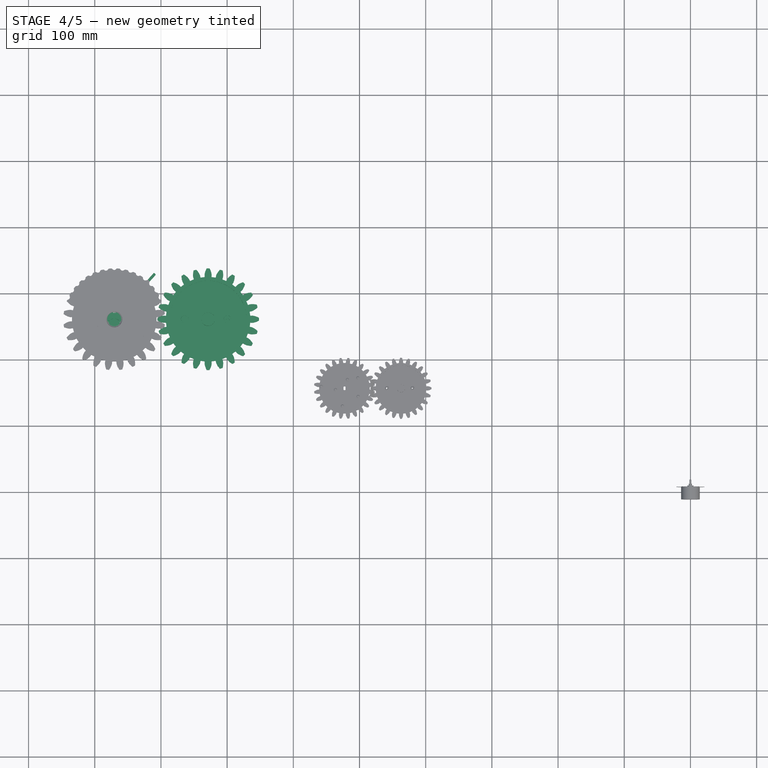
[diagram: stage 4 of 5 — top view after this stage's code; geometry added in this stage tinted green]
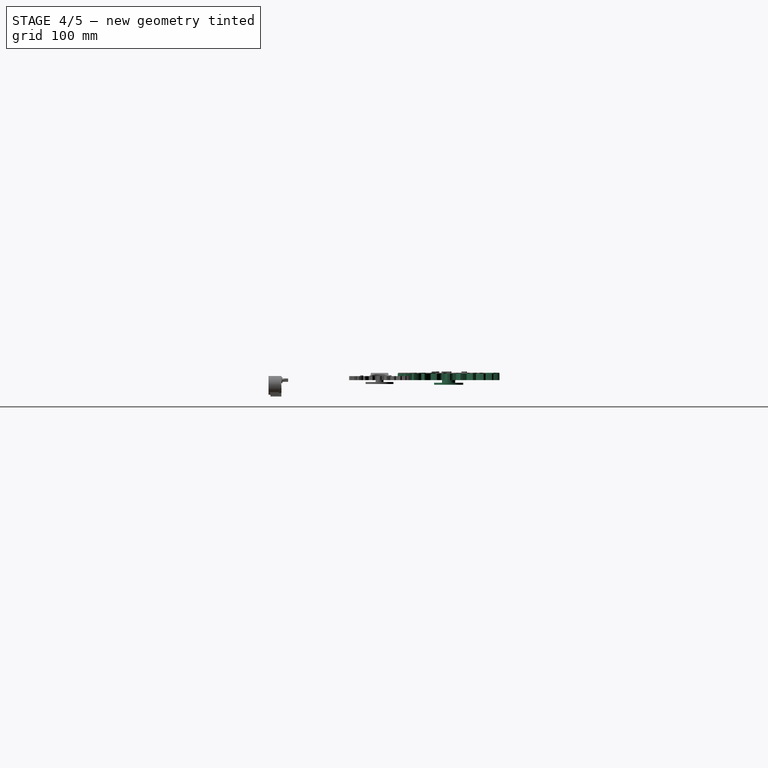
[diagram: stage 4 of 5 — right view after this stage's code; geometry added in this stage tinted green]
FEATURE [PartDesign::Body] Body
  BaseFeature = -> Extrude
  Group = -> [BaseFeature,Sketch,Pocket]
  Origin = -> Origin005
  Tip = -> Pocket
FEATURE [App::Part] Part
  Group = -> [InvoluteGear,Extrude,Body]
  Origin = -> Origin004
FEATURE [PartDesign::FeatureBase] BaseFeature001
  BaseFeature = -> Part__Feature005
FEATURE [Sketcher::SketchObject] Sketch001
  ExternalGeometry = -> [BaseFeature001]
  MapMode = 5
  Support = -> [BaseFeature001]
  sketch-geometry (5):
    g0: Circle CenterX=-728.694 CenterY=260.906 CenterZ=0 NormalX=0 NormalY=0 NormalZ=1 AngleXU=0 Radius=10
    g1: LineSegment StartX=-976.475 StartY=364.008 StartZ=0 EndX=-583.285 EndY=364.008 EndZ=0
    g2: LineSegment StartX=-583.285 StartY=364.008 StartZ=0 EndX=-583.285 EndY=153.764 EndZ=0
    g3: LineSegment StartX=-583.285 StartY=153.764 StartZ=0 EndX=-976.475 EndY=153.764 EndZ=0
    g4: LineSegment StartX=-976.475 StartY=153.764 StartZ=0 EndX=-976.475 EndY=364.008 EndZ=0
  constraints (10):
    c: Coincident(g0,g-3)
    c: PointOnObject(g-3,g0)
    c: Coincident(g1,g2)
    c: Coincident(g2,g3)
    c: Coincident(g3,g4)
    c: Coincident(g4,g1)
    c: Horizontal(g1)
    c: Horizontal(g3)
    c: Vertical(g2)
    c: Vertical(g4)
FEATURE [PartDesign::Pocket] Pocket001
  BaseFeature = -> BaseFeature001
  Length = 5
  Length2 = 100
  Profile = -> Sketch001
  Type = 1
FEATURE [PartDesign::FeatureBase] BaseFeature002
  BaseFeature = -> Part__Feature006
FEATURE [Sketcher::SketchObject] Sketch002
  ExternalGeometry = -> [BaseFeature002]
  MapMode = 5
  Support = -> [BaseFeature002]
  sketch-geometry (5):
    g0: Circle CenterX=-870.506 CenterY=260.906 CenterZ=0 NormalX=0 NormalY=0 NormalZ=1 AngleXU=0 Radius=10
    g1: LineSegment StartX=-1009.65 StartY=375.433 StartZ=0 EndX=-767.854 EndY=375.433 EndZ=0
    g2: LineSegment StartX=-767.854 StartY=375.433 StartZ=0 EndX=-767.854 EndY=174.565 EndZ=0
    g3: LineSegment StartX=-767.854 StartY=174.565 StartZ=0 EndX=-1009.65 EndY=174.565 EndZ=0
    g4: LineSegment StartX=-1009.65 StartY=174.565 StartZ=0 EndX=-1009.65 EndY=375.433 EndZ=0
  constraints (10):
    c: Coincident(g0,g-3)
    c: PointOnObject(g-3,g0)
    c: Coincident(g1,g2)
    c: Coincident(g2,g3)
    c: Coincident(g3,g4)
    c: Coincident(g4,g1)
    c: Horizontal(g1)
    c: Horizontal(g3)
    c: Vertical(g2)
    c: Vertical(g4)
FEATURE [PartDesign::Pocket] Pocket002
  BaseFeature = -> BaseFeature002
  Length = 5
  Length2 = 100
  Profile = -> Sketch002
  Refine = true
  Type = 0
FEATURE [PartDesign::Body] Body002
  BaseFeature = -> Part__Feature006
  Group = -> [BaseFeature002,Sketch002,Pocket002,Sketch003,Pad]
  Origin = -> Origin007
  Tip = -> Pad
FEATURE [Sketcher::SketchObject] Sketch004
  ExternalGeometry = -> [Pocket001]
  MapMode = 5
  Placement = pos=(0,0,-4) rot=(1,0,0;3.14159rad)
  Support = -> [Pocket001]
  sketch-geometry (8):
    g0: Circle CenterX=-728.694 CenterY=-260.906 CenterZ=0 NormalX=0 NormalY=0 NormalZ=1 AngleXU=0 Radius=22
    g1: Circle [constr] CenterX=-728.694 CenterY=-260.906 CenterZ=0 NormalX=0 NormalY=0 NormalZ=1 AngleXU=0 Radius=18
    g2: LineSegment [constr] StartX=-728.694 StartY=-260.906 StartZ=0 EndX=-728.694 EndY=-242.906 EndZ=0
    g3: LineSegment [constr] StartX=-728.694 StartY=-260.906 StartZ=0 EndX=-713.106 EndY=-269.906 EndZ=0
    g4: LineSegment [constr] StartX=-728.694 StartY=-260.906 StartZ=0 EndX=-744.283 EndY=-269.906 EndZ=0
    g5: Circle CenterX=-728.694 CenterY=-242.906 CenterZ=0 NormalX=0 NormalY=0 NormalZ=1 AngleXU=0 Radius=1.65
    g6: Circle CenterX=-713.106 CenterY=-269.906 CenterZ=0 NormalX=0 NormalY=0 NormalZ=1 AngleXU=0 Radius=1.65
    g7: Circle CenterX=-744.283 CenterY=-269.906 CenterZ=0 NormalX=0 NormalY=0 NormalZ=1 AngleXU=0 Radius=1.65
  constraints (19):
    c: Coincident(g0,g-3)
    c: Coincident(g1,g0)
    c: Coincident(g2,g0)
    c: Vertical(g2)
    c: Coincident(g3,g0)
    c: PointOnObject(g3,g1)
    c: Coincident(g4,g0)
    c: PointOnObject(g4,g1)
    c: PointOnObject(g2,g1)
    c: Coincident(g5,g2)
    c: Coincident(g6,g3)
    c: Coincident(g7,g4)
    c: Radius(g7) = 1.65
    c: Equal(g7,g6)
    c: Equal(g7,g5)
    c: Radius(g0) = 22
    c: Radius(g1) = 18
    c: Angle(g3,g2) = 2.0944
    c: Angle(g2,g4) = 2.0944
FEATURE [PartDesign::Pad] Pad001
  BaseFeature = -> Pocket001
  Length = 3
  Length2 = 100
  Profile = -> Sketch004
  Refine = true
  Type = 0
FEATURE [PartDesign::FeatureBase] BaseFeature005
  BaseFeature = -> Part__Feature001
FEATURE [Sketcher::SketchObject] Sketch006
  ExternalGeometry = -> [BaseFeature005]
  MapMode = 5
  Placement = pos=(0,0,-3.13e-14) rot=(1,0,0;3.14159rad)
  Support = -> [BaseFeature005]
  sketch-geometry (2):
    g0: Circle CenterX=-728.694 CenterY=-260.906 CenterZ=0 NormalX=0 NormalY=0 NormalZ=1 AngleXU=0 Radius=14
    g1: Circle CenterX=-728.694 CenterY=-260.906 CenterZ=0 NormalX=0 NormalY=0 NormalZ=1 AngleXU=0 Radius=22
  constraints (4):
    c: Coincident(g0,g-3)
    c: Coincident(g1,g0)
    c: Radius(g0) = 14
    c: Radius(g1) = 22
FEATURE [PartDesign::Pocket] Pocket003
  BaseFeature = -> BaseFeature005
  Length = 3
  Length2 = 100
  Profile = -> Sketch006
  Refine = true
  Type = 0
FEATURE [Part::Feature] Part__Feature022  label="Jann62E009ACvm44"
  shape: bbox 20.17 x 11.18 x 6.65 mm, 218 faces (baked)
FEATURE [Part::Feature] Part__Feature023  label="Jann62E009ACvm045"
  shape: bbox 0.5 x 4 x 3.2 mm, 9 faces (baked)
FEATURE [Part::Feature] Part__Feature024  label="Jann62E009ACvm046"
  shape: bbox 0.5 x 4 x 3.2 mm, 9 faces (baked)
FEATURE [Part::Feature] Part__Feature025  label="Jann62E009ACvm047"
  shape: bbox 0.5 x 4 x 3.2 mm, 9 faces (baked)
FEATURE [Part::Feature] Part__Feature026  label="Jann62E009ACvm048"
  shape: bbox 1.948 x 2.574 x 3.6 mm, 20 faces (baked)
FEATURE [Part::Feature] Part__Feature027  label="Jann62E009ACvm049"
  shape: bbox 16.04 x 7.33 x 5.8 mm, 14 faces (baked)
FEATURE [App::Part] Jann62E009ACvm44  label="Jann62E009ACvm050"
  Group = -> [Part__Feature022,Part__Feature023,Part__Feature024,Part__Feature025,Part__Feature026,Part__Feature027]
  Origin = -> Origin015
  Placement = pos=(-800.2,317.59,6) rot=(-0.406737,0.913545,0;3.14159rad)
FEATURE [Sketcher::SketchObject] Sketch008
  ExternalGeometry = -> [Pocket004]
  MapMode = 5
  Placement = pos=(0,0,11) rot=(0,0,1;0rad)
  Support = -> [Pocket004]
  sketch-geometry (10):
    g0: ArcOfCircle CenterX=-822.103 CenterY=322.764 CenterZ=0 NormalX=0 NormalY=0 NormalZ=1 AngleXU=0 Radius=3.09312 StartAngle=4.77506 EndAngle=5.55433
    g1: ArcOfCircle CenterX=-814.505 CenterY=315.98 CenterZ=0 NormalX=0 NormalY=0 NormalZ=1 AngleXU=0 Radius=3.09312 StartAngle=2.41274 EndAngle=3.19201
    g2: LineSegment StartX=-819.796 StartY=320.704 StartZ=0 EndX=-811.214 EndY=330.315 EndZ=0
    g3: LineSegment StartX=-816.812 StartY=318.04 StartZ=0 EndX=-808.23 EndY=327.651 EndZ=0
    g4: LineSegment [constr] StartX=-819.796 StartY=320.704 StartZ=0 EndX=-816.812 EndY=318.04 EndZ=0
    g5: LineSegment StartX=-809.802 StartY=330.395 StartZ=0 EndX=-808.31 EndY=329.063 EndZ=0
    g6: LineSegment [constr] StartX=-821.784 StartY=317.681 StartZ=0 EndX=-819.591 EndY=315.723 EndZ=0
    g7: ArcOfCircle CenterX=-810.468 CenterY=329.649 CenterZ=0 NormalX=0 NormalY=0 NormalZ=1 AngleXU=0 Radius=1 StartAngle=0.841942 EndAngle=2.41274
    g8: ArcOfCircle CenterX=-808.976 CenterY=328.317 CenterZ=0 NormalX=0 NormalY=0 NormalZ=1 AngleXU=0 Radius=1 StartAngle=5.55433 EndAngle=7.12513
    g9: LineSegment StartX=-821.909 StartY=319.677 StartZ=0 EndX=-817.594 EndY=315.824 EndZ=0
  constraints (24):
    c: PointOnObject(g1,g-3)
    c: Tangent(g-4,g0)
    c: Tangent(g1,g-3)
    c: Equal(g2,g3)
    c: Tangent(g1,g3) = 1.5708
    c: Coincident(g1,g4)
    c: Tangent(g2,g0) = -1.5708
    c: Coincident(g4,g0)
    c: Coincident(g6,g-4)
    c: Coincident(g6,g-3)
    c: Parallel(g4,g6)
    c: Distance(g4) = 4
    c: Perpendicular(g2,g4)
    c: Tangent(g2,g7) = 1.5708
    c: Tangent(g5,g7) = 1.5708
    c: Tangent(g5,g8) = 1.5708
    c: Tangent(g3,g8) = -1.5708
    c: Radius(g8) = 1
    c: Equal(g8,g7)
    c: Parallel(g3,g2)
    c: Coincident(g9,g0)
    c: Coincident(g9,g1)
    c: Parallel(g9,g6)
    c: PointOnObject(g0,g-4)
FEATURE [PartDesign::Pad] Pad002
  BaseFeature = -> Pocket004
  Length = 11
  Length2 = 100
  Profile = -> Sketch008
  Refine = true
  Reversed = true
  Type = 0
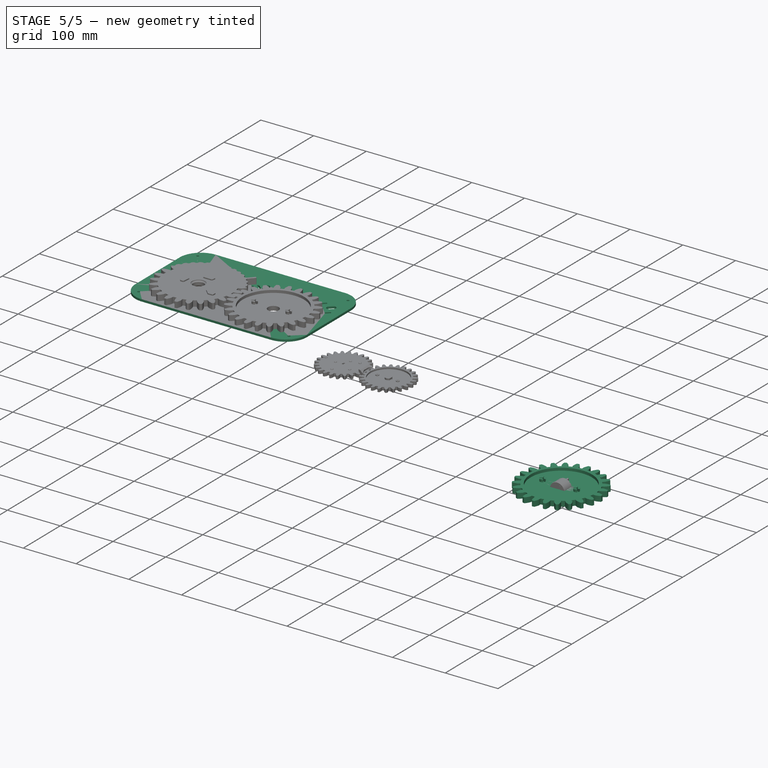
[diagram: stage 5 of 5 — iso view after this stage's code; geometry added in this stage tinted green]
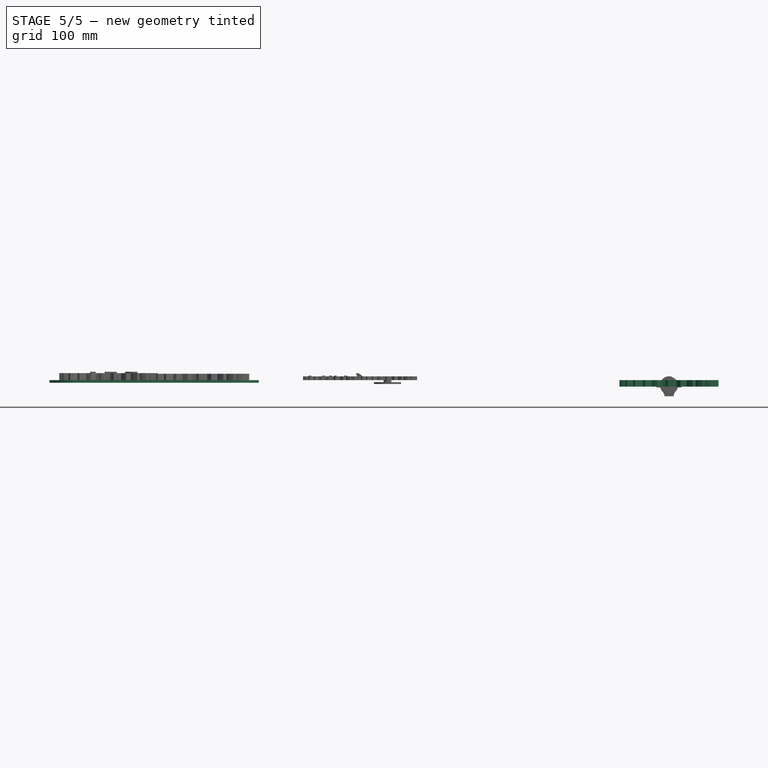
[diagram: stage 5 of 5 — front view after this stage's code; geometry added in this stage tinted green]
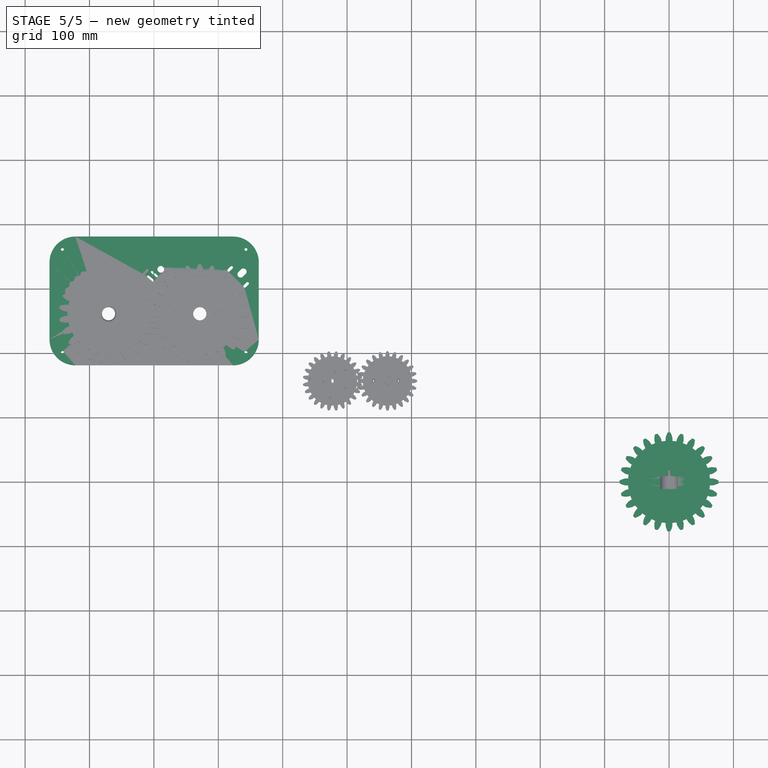
[diagram: stage 5 of 5 — top view after this stage's code; geometry added in this stage tinted green]
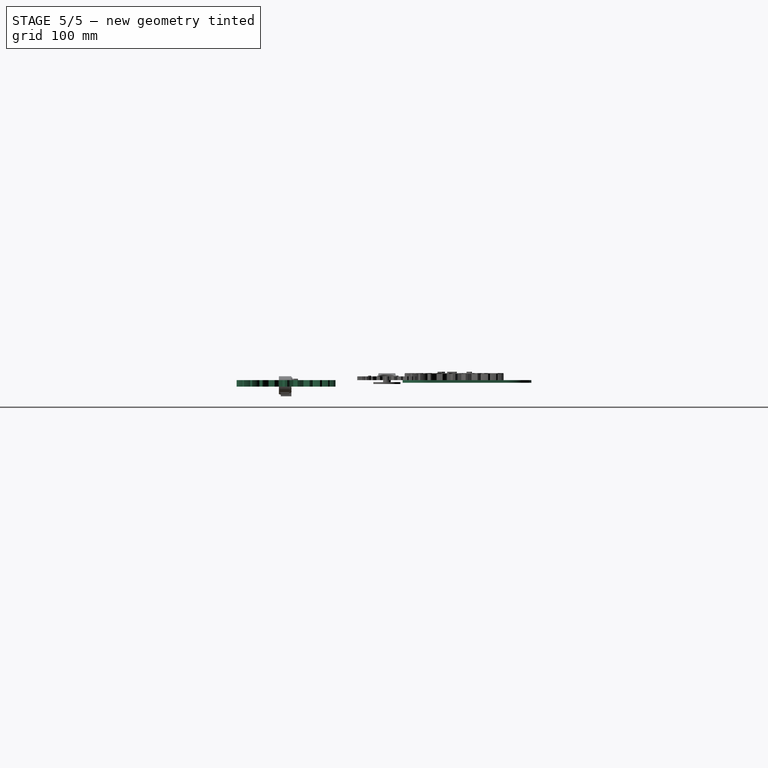
[diagram: stage 5 of 5 — right view after this stage's code; geometry added in this stage tinted green]
FEATURE [Part::Feature] Part__Feature  label="Spur Gear (24 teeth)"
  shape: bbox 152.8 x 153.1 x 13 mm, 250 faces (baked)
FEATURE [Part::Feature] Part__Feature001  label="Spur Gear (24 teeth) (1)"
  shape: bbox 153.6 x 153.6 x 10.31 mm, 233 faces (baked)
FEATURE [Part::Feature] Part__Feature002  label="Spur Gear (12 teeth)"
  shape: bbox 41.36 x 41.36 x 10 mm, 100 faces (baked)
FEATURE [Part::Feature] Part__Feature003  label="Spur Gear (12 teeth) (1)"
  shape: bbox 40.39 x 40.39 x 13 mm, 146 faces (baked)
FEATURE [Part::Feature] Part__Feature004  label="Spur Gear (8 teeth)"
  shape: bbox 27.88 x 27.88 x 13.02 mm, 77 faces (baked)
FEATURE [Part::Feature] Part__Feature005  label="Base"
  shape: bbox 157.5 x 158.2 x 14 mm, 30 faces (baked)
FEATURE [Part::Feature] Part__Feature006  label="Base001"
  shape: bbox 157.5 x 158.2 x 14.01 mm, 42 faces (baked)
FEATURE [Part::Feature] Part__Feature007  label="C"
  shape: bbox 47.66 x 62.51 x 4 mm, 32 faces (baked)
FEATURE [Part::Feature] Part__Feature008  label="L"
  shape: bbox 30.93 x 96.62 x 5 mm, 33 faces (baked)
FEATURE [Part::Feature] Part__Feature009  label="E"
  shape: bbox 52.77 x 61.73 x 5.011 mm, 70 faces (baked)
FEATURE [Part::Feature] Part__Feature010  label="O"
  shape: bbox 53.19 x 64.47 x 5 mm, 28 faces (baked)
FEATURE [Part::Feature] Part__Feature011  label="S"
  shape: bbox 58.74 x 56.59 x 4.014 mm, 91 faces (baked)
FEATURE [Part::Feature] Part__Feature012  label="28BYJ-48-001"
  Placement = pos=(0,-10.6,-7.9) rot=(0,0,1;0rad)
  shape: bbox 28.73 x 19.65 x 28.36 mm, 514 faces (baked)
FEATURE [Part::Feature] Part__Feature013  label="28BYJ-48-005"
  Placement = pos=(-0.06,0.351694,0) rot=(0,0,1;0rad)
  shape: bbox 5 x 18 x 5 mm, 11 faces (baked)
FEATURE [Part::Feature] Part__Feature014  label="28BYJ-48-002"
  Placement = pos=(0,7.4,-7.9) rot=(0,0,1;0rad)
  shape: bbox 42 x 2.3 x 29.5 mm, 37 faces (baked)
FEATURE [Part::Feature] Part__Feature015  label="28BYJ-48-009"
  Placement = pos=(-1.65e-13,5.7,-23.8765) rot=(0,1,0;3.14159rad)
  shape: bbox 0.9 x 0.9 x 18 mm, 7 faces (baked)
FEATURE [Part::Feature] Part__Feature016  label="28BYJ-48-007"
  Placement = pos=(-1.65e-13,5.7,-23.8765) rot=(0,1,0;3.14159rad)
  shape: bbox 0.9 x 0.9 x 18 mm, 7 faces (baked)
FEATURE [Part::Feature] Part__Feature017  label="28BYJ-48-003"
  Placement = pos=(0,-0.5,0) rot=(0,0,1;0rad)
  shape: bbox 7.6 x 10 x 7.6 mm, 6 faces (baked)
FEATURE [Part::Feature] Part__Feature018  label="28BYJ-48-011"
  Placement = pos=(-1.65e-13,5.7,-23.8765) rot=(0,1,0;3.14159rad)
  shape: bbox 0.9 x 0.9 x 18 mm, 7 faces (baked)
FEATURE [Part::Feature] Part__Feature019  label="28BYJ-48-010"
  Placement = pos=(-1.65e-13,5.7,-23.8765) rot=(0,1,0;3.14159rad)
  shape: bbox 0.9 x 0.9 x 18 mm, 7 faces (baked)
FEATURE [Part::Feature] Part__Feature020  label="28BYJ-48-008"
  Placement = pos=(-1.65e-13,5.7,-23.8765) rot=(0,1,0;3.14159rad)
  shape: bbox 0.9 x 0.9 x 18 mm, 7 faces (baked)
FEATURE [App::Part] _8BYJ_48_007  label="28BYJ-48-012"
  Group = -> [Part__Feature016,Part__Feature020,Part__Feature015,Part__Feature019,Part__Feature018]
  Origin = -> Origin003
FEATURE [Part::Feature] Part__Feature021  label="28BYJ-48-006"
  Placement = pos=(-2.59e-13,-0.05,-24.8765) rot=(0,-1,0;1.5708rad)
  shape: bbox 18.97 x 17.5 x 6.008 mm, 89 faces (baked)
FEATURE [Part::Part2DObjectPython] InvoluteGear  # Draft 2D object (typed FeaturePython)
  ExternalGear = true
  HighPrecision = true
  Modules = 5.9
  NumberOfTeeth = 6
  Placement = pos=(-664.5,323,0) rot=(0,0,1;0.174533rad)
  PressureAngle = 20
FEATURE [Part::FeaturePython] Clone  label="Spur Gear (24 teeth) (1)001"  # Draft clone (typed FeaturePython)
  AttacherType = Attacher::AttachEngine3D
  Fuse = false
  Objects = -> [Part__Feature001]
  Placement = pos=(728.65,-261,-10) rot=(0,0,1;0rad)
  Scale = (1,1,1)
FEATURE [Part::Extrusion] Extrude
  Base = -> InvoluteGear
  Dir = (0,0,1)
  DirMode = 2
  FaceMakerClass = Part::FaceMakerBullseye
  LengthFwd = 10
  LengthRev = 0
  Solid = true
  Symmetric = false
FEATURE [PartDesign::FeatureBase] BaseFeature
  BaseFeature = -> Extrude
FEATURE [Sketcher::SketchObject] Sketch
  ExternalGeometry = -> [BaseFeature]
  MapMode = 5
  Placement = pos=(0,0,10) rot=(0,0,1;0rad)
  Support = -> [BaseFeature]
  sketch-geometry (1):
    g0: Circle CenterX=-664.5 CenterY=323 CenterZ=0 NormalX=0 NormalY=0 NormalZ=1 AngleXU=0 Radius=2.6
  constraints (2):
    c: Coincident(g0,g-7)
    c: Radius(g0) = 2.6
FEATURE [PartDesign::Pocket] Pocket
  BaseFeature = -> BaseFeature
  Length = 5
  Length2 = 100
  Profile = -> Sketch
  Type = 1
FEATURE [Sketcher::SketchObject] Sketch003
  ExternalGeometry = -> [Pocket002]
  MapMode = 5
  Placement = pos=(0,0,-4) rot=(1,0,0;3.14159rad)
  Support = -> [Pocket002]
  sketch-geometry (8):
    g0: Circle CenterX=-870.506 CenterY=-260.906 CenterZ=0 NormalX=0 NormalY=0 NormalZ=1 AngleXU=0 Radius=22
    g1: LineSegment [constr] StartX=-870.506 StartY=-260.906 StartZ=0 EndX=-870.506 EndY=-242.906 EndZ=0
    g2: LineSegment [constr] StartX=-870.506 StartY=-260.906 StartZ=0 EndX=-886.094 EndY=-269.906 EndZ=0
    g3: LineSegment [constr] StartX=-870.506 StartY=-260.906 StartZ=0 EndX=-854.917 EndY=-269.906 EndZ=0
    g4: Circle [constr] CenterX=-870.506 CenterY=-260.906 CenterZ=0 NormalX=0 NormalY=0 NormalZ=1 AngleXU=0 Radius=18
    g5: Circle CenterX=-870.506 CenterY=-242.906 CenterZ=0 NormalX=0 NormalY=0 NormalZ=1 AngleXU=0 Radius=1.65
    g6: Circle CenterX=-854.917 CenterY=-269.906 CenterZ=0 NormalX=0 NormalY=0 NormalZ=1 AngleXU=0 Radius=1.65
    g7: Circle CenterX=-886.094 CenterY=-269.906 CenterZ=0 NormalX=0 NormalY=0 NormalZ=1 AngleXU=0 Radius=1.65
  constraints (20):
    c: Coincident(g0,g-3)
    c: Radius(g0) = 22
    c: Coincident(g1,g0)
    c: Vertical(g1)
    c: Coincident(g2,g0)
    c: Coincident(g3,g0)
    c: Angle(g1,g2) = 2.0944
    c: Angle(g3,g1) = 2.0944
    c: Angle(g2,g3) = 2.0944
    c: Coincident(g4,g0)
    c: PointOnObject(g2,g4)
    c: PointOnObject(g1,g4)
    c: PointOnObject(g3,g4)
    c: Radius(g4) = 18
    c: Coincident(g5,g1)
    c: Coincident(g6,g3)
    c: Coincident(g7,g2)
    c: Radius(g6) = 1.65
    c: Equal(g6,g7)
    c: Equal(g6,g5)
FEATURE [PartDesign::Pad] Pad
  BaseFeature = -> Pocket002
  Length = 3
  Length2 = 100
  Profile = -> Sketch003
  Refine = true
  Type = 0
FEATURE [PartDesign::Body] Body001
  BaseFeature = -> Part__Feature005
  Group = -> [BaseFeature001,Sketch001,Pocket001,Sketch004,Pad001]
  Origin = -> Origin006
  Tip = -> Pad001
FEATURE [PartDesign::Body] Body003
  Origin = -> Origin008
FEATURE [App::Part] Base  label="Base002"
  Group = -> [Part__Feature005,Body001,Part__Feature006,Body002,Body003]
  Origin = -> Origin
FEATURE [Sketcher::SketchObject] Sketch005
  ExternalGeometry = -> [Pad,Pad001,Pocket]
  sketch-geometry (77):
    g0: LineSegment [constr] StartX=-681.556 StartY=330.68 StartZ=0 EndX=-656.807 EndY=305.931 EndZ=0
    g1: LineSegment [constr] StartX=-660.484 StartY=305.365 StartZ=0 EndX=-657.373 EndY=302.254 EndZ=0
    g2: LineSegment [constr] StartX=-657.373 StartY=302.254 StartZ=0 EndX=-656.242 EndY=309.608 EndZ=0
    g3: LineSegment [constr] StartX=-656.242 StartY=309.608 StartZ=0 EndX=-653.131 EndY=306.497 EndZ=0
    g4: LineSegment [constr] StartX=-653.131 StartY=306.497 StartZ=0 EndX=-660.484 EndY=305.365 EndZ=0
    g5: ArcOfCircle CenterX=-654.686 CenterY=308.052 CenterZ=0 NormalX=0 NormalY=0 NormalZ=1 AngleXU=0 Radius=2.2 StartAngle=5.49779 EndAngle=8.63938
    g6: LineSegment StartX=-653.131 StartY=306.497 StartZ=0 EndX=-657.373 EndY=302.254 EndZ=0
    g7: LineSegment StartX=-660.484 StartY=305.365 StartZ=0 EndX=-656.242 EndY=309.608 EndZ=0
    g8: ArcOfCircle CenterX=-658.929 CenterY=303.81 CenterZ=0 NormalX=0 NormalY=0 NormalZ=1 AngleXU=0 Radius=2.2 StartAngle=2.35619 EndAngle=5.49779
    g9: LineSegment [constr] StartX=-685.233 StartY=330.114 StartZ=0 EndX=-682.122 EndY=327.003 EndZ=0
    g10: LineSegment [constr] StartX=-682.122 StartY=327.003 StartZ=0 EndX=-680.991 EndY=334.357 EndZ=0
    g11: LineSegment [constr] StartX=-680.991 StartY=334.357 StartZ=0 EndX=-677.879 EndY=331.245 EndZ=0
    g12: LineSegment [constr] StartX=-677.879 StartY=331.245 StartZ=0 EndX=-685.233 EndY=330.114 EndZ=0
    g13: LineSegment StartX=-680.991 StartY=334.357 StartZ=0 EndX=-685.233 EndY=330.114 EndZ=0
    g14: LineSegment StartX=-677.879 StartY=331.245 StartZ=0 EndX=-682.122 EndY=327.003 EndZ=0
    g15: ArcOfCircle CenterX=-679.435 CenterY=332.801 CenterZ=0 NormalX=0 NormalY=0 NormalZ=1 AngleXU=0 Radius=2.2 StartAngle=5.49779 EndAngle=8.63938
    g16: ArcOfCircle CenterX=-683.678 CenterY=328.558 CenterZ=0 NormalX=0 NormalY=0 NormalZ=1 AngleXU=0 Radius=2.2 StartAngle=2.35619 EndAngle=5.49779
    g17: Circle CenterX=-854.917 CenterY=269.906 CenterZ=0 NormalX=0 NormalY=0 NormalZ=1 AngleXU=0 Radius=1.65
    g18: Circle CenterX=-886.094 CenterY=269.906 CenterZ=0 NormalX=0 NormalY=0 NormalZ=1 AngleXU=0 Radius=1.65
    g19: Circle CenterX=-870.506 CenterY=242.906 CenterZ=0 NormalX=0 NormalY=0 NormalZ=1 AngleXU=0 Radius=1.65
    g20: Circle CenterX=-744.283 CenterY=269.906 CenterZ=0 NormalX=0 NormalY=0 NormalZ=1 AngleXU=0 Radius=1.65
    g21: Circle CenterX=-713.106 CenterY=269.906 CenterZ=0 NormalX=0 NormalY=0 NormalZ=1 AngleXU=0 Radius=1.65
    g22: Circle CenterX=-728.694 CenterY=242.906 CenterZ=0 NormalX=0 NormalY=0 NormalZ=1 AngleXU=0 Radius=1.65
    g23: Circle CenterX=-728.694 CenterY=260.906 CenterZ=0 NormalX=0 NormalY=0 NormalZ=1 AngleXU=0 Radius=12
    g24: Circle CenterX=-870.506 CenterY=260.906 CenterZ=0 NormalX=0 NormalY=0 NormalZ=1 AngleXU=0 Radius=12
    g25: LineSegment [constr] StartX=-681.556 StartY=330.68 StartZ=0 EndX=-663.167 EndY=324.321 EndZ=0
    g26: LineSegment [constr] StartX=-663.167 StartY=324.321 StartZ=0 EndX=-656.807 EndY=305.931 EndZ=0
    g27: LineSegment [constr] StartX=-668.824 StartY=325.735 StartZ=0 EndX=-661.752 EndY=318.664 EndZ=0
    g28: LineSegment [constr] StartX=-661.752 StartY=318.664 StartZ=0 EndX=-664.581 EndY=329.977 EndZ=0
    g29: LineSegment [constr] StartX=-664.581 StartY=329.977 StartZ=0 EndX=-657.51 EndY=322.906 EndZ=0
    g30: LineSegment [constr] StartX=-657.51 StartY=322.906 StartZ=0 EndX=-668.824 EndY=325.735 EndZ=0
    g31: LineSegment StartX=-664.581 StartY=329.977 StartZ=0 EndX=-668.824 EndY=325.735 EndZ=0
    g32: LineSegment StartX=-657.51 StartY=322.906 StartZ=0 EndX=-661.752 EndY=318.664 EndZ=0
    g33: ArcOfCircle CenterX=-661.045 CenterY=326.442 CenterZ=0 NormalX=0 NormalY=0 NormalZ=1 AngleXU=0 Radius=5 StartAngle=5.49779 EndAngle=8.63938
    g34: ArcOfCircle CenterX=-665.288 CenterY=322.199 CenterZ=0 NormalX=0 NormalY=0 NormalZ=1 AngleXU=0 Radius=5 StartAngle=2.35619 EndAngle=5.49779
    g35: LineSegment StartX=-677.1 StartY=380.906 StartZ=0 EndX=-922.1 EndY=380.906 EndZ=0
    g36: LineSegment StartX=-962.1 StartY=340.906 StartZ=0 EndX=-962.1 EndY=220.906 EndZ=0
    g37: LineSegment StartX=-922.1 StartY=180.906 StartZ=0 EndX=-677.1 EndY=180.906 EndZ=0
    g38: LineSegment StartX=-637.1 StartY=220.906 StartZ=0 EndX=-637.1 EndY=340.906 EndZ=0
    g39: LineSegment [constr] StartX=-870.506 StartY=260.906 StartZ=0 EndX=-922.1 EndY=180.906 EndZ=0
    g40: LineSegment [constr] StartX=-728.694 StartY=260.906 StartZ=0 EndX=-677.1 EndY=180.906 EndZ=0
    g41: ArcOfCircle CenterX=-922.1 CenterY=340.906 CenterZ=0 NormalX=0 NormalY=0 NormalZ=1 AngleXU=0 Radius=40 StartAngle=1.5708 EndAngle=3.14159
    g42: ArcOfCircle CenterX=-677.1 CenterY=340.906 CenterZ=0 NormalX=0 NormalY=0 NormalZ=1 AngleXU=0 Radius=40 StartAngle=0 EndAngle=1.5708
    g43: ArcOfCircle CenterX=-677.1 CenterY=220.906 CenterZ=0 NormalX=0 NormalY=0 NormalZ=1 AngleXU=0 Radius=40 StartAngle=4.71239 EndAngle=6.28319
    g44: ArcOfCircle CenterX=-922.1 CenterY=220.906 CenterZ=0 NormalX=0 NormalY=0 NormalZ=1 AngleXU=0 Radius=40 StartAngle=3.14159 EndAngle=4.71239
    g45: LineSegment [constr] StartX=-799.275 StartY=322.615 StartZ=0 EndX=-805.06 EndY=315.721 EndZ=0
    g46: LineSegment [constr] StartX=-804.15 StartY=324.584 StartZ=0 EndX=-802.061 EndY=327.074 EndZ=0
    g47: LineSegment [constr] StartX=-802.061 StartY=327.074 StartZ=0 EndX=-796.489 EndY=318.156 EndZ=0
    g48: LineSegment [constr] StartX=-796.489 StartY=318.156 StartZ=0 EndX=-794.4 EndY=320.646 EndZ=0
    g49: LineSegment [constr] StartX=-809.935 StartY=317.69 StartZ=0 EndX=-807.846 EndY=320.179 EndZ=0
    g50: LineSegment [constr] StartX=-807.846 StartY=320.179 StartZ=0 EndX=-802.275 EndY=311.262 EndZ=0
    g51: LineSegment [constr] StartX=-802.275 StartY=311.262 StartZ=0 EndX=-800.185 EndY=313.752 EndZ=0
    g52: LineSegment [constr] StartX=-800.185 StartY=313.752 StartZ=0 EndX=-809.935 EndY=317.69 EndZ=0
    g53: LineSegment StartX=-809.935 StartY=317.69 StartZ=0 EndX=-802.275 EndY=311.262 EndZ=0
    g54: LineSegment StartX=-800.185 StartY=313.752 StartZ=0 EndX=-807.846 EndY=320.179 EndZ=0
    g55: LineSegment StartX=-804.15 StartY=324.584 StartZ=0 EndX=-796.489 EndY=318.156 EndZ=0
    g56: LineSegment StartX=-794.4 StartY=320.646 StartZ=0 EndX=-802.061 EndY=327.074 EndZ=0
    g57: ArcOfCircle CenterX=-803.105 CenterY=325.829 CenterZ=0 NormalX=0 NormalY=0 NormalZ=1 AngleXU=0 Radius=1.625 StartAngle=0.872665 EndAngle=4.01426
    g58: ArcOfCircle CenterX=-795.445 CenterY=319.401 CenterZ=0 NormalX=0 NormalY=0 NormalZ=1 AngleXU=0 Radius=1.625 StartAngle=4.01426 EndAngle=7.15585
    g59: ArcOfCircle CenterX=-801.23 CenterY=312.507 CenterZ=0 NormalX=0 NormalY=0 NormalZ=1 AngleXU=0 Radius=1.625 StartAngle=4.01426 EndAngle=7.15585
    g60: ArcOfCircle CenterX=-808.89 CenterY=318.935 CenterZ=0 NormalX=0 NormalY=0 NormalZ=1 AngleXU=0 Radius=1.625 StartAngle=0.872665 EndAngle=4.01426
    g61: LineSegment [constr] StartX=-804.15 StartY=324.584 StartZ=0 EndX=-794.4 EndY=320.646 EndZ=0
    g62: Circle CenterX=-789.336 CenterY=330.061 CenterZ=0 NormalX=0 NormalY=0 NormalZ=1 AngleXU=0 Radius=5.19878
    g63: LineSegment [constr] StartX=-942.101 StartY=360.907 StartZ=0 EndX=-657.101 EndY=360.904 EndZ=0
    g64: LineSegment [constr] StartX=-657.101 StartY=360.904 StartZ=0 EndX=-657.101 EndY=200.907 EndZ=0
    g65: LineSegment [constr] StartX=-657.101 StartY=200.907 StartZ=0 EndX=-942.101 EndY=200.907 EndZ=0
    g66: LineSegment [constr] StartX=-942.101 StartY=200.907 StartZ=0 EndX=-942.101 EndY=360.907 EndZ=0
    g67: Circle CenterX=-942.101 CenterY=360.907 CenterZ=0 NormalX=0 NormalY=0 NormalZ=1 AngleXU=0 Radius=2.2
    g68: Circle CenterX=-657.101 CenterY=360.904 CenterZ=0 NormalX=0 NormalY=0 NormalZ=1 AngleXU=0 Radius=2.2
    g69: Circle CenterX=-657.101 CenterY=200.907 CenterZ=0 NormalX=0 NormalY=0 NormalZ=1 AngleXU=0 Radius=2.2
    g70: Circle CenterX=-942.101 CenterY=200.907 CenterZ=0 NormalX=0 NormalY=0 NormalZ=1 AngleXU=0 Radius=2.2
    g71: LineSegment [constr] StartX=-657.101 StartY=200.907 StartZ=0 EndX=-677.1 EndY=180.906 EndZ=0
    g72: LineSegment [constr] StartX=-657.101 StartY=200.907 StartZ=0 EndX=-637.1 EndY=220.906 EndZ=0
    g73: LineSegment [constr] StartX=-922.1 StartY=380.906 StartZ=0 EndX=-942.101 EndY=360.907 EndZ=0
    g74: LineSegment [constr] StartX=-942.101 StartY=360.907 StartZ=0 EndX=-962.1 EndY=340.906 EndZ=0
    g75: LineSegment [constr] StartX=-677.1 StartY=380.906 StartZ=0 EndX=-657.101 EndY=360.904 EndZ=0
    g76: LineSegment [constr] StartX=-657.101 StartY=360.904 StartZ=0 EndX=-637.1 EndY=340.906 EndZ=0
  constraints (195):
    c: Angle(g-1,g0) = 2.35619
    c: Distance(g0) = 35
    c: Coincident(g1,g2)
    c: Coincident(g2,g3)
    c: Coincident(g3,g4)
    c: Coincident(g4,g1)
    c: Equal(g2,g4)
    c: Parallel(g3,g1)
    c: Equal(g3,g1)
    c: Parallel(g0,g1)
    c: PointOnObject(g0,g2)
    c: PointOnObject(g0,g4)
    c: PointOnObject(g5,g3)
    c: Coincident(g3,g5)
    c: Coincident(g2,g5)
    c: Coincident(g6,g5)
    c: Coincident(g5,g7)
    c: Coincident(g1,g6)
    c: Coincident(g1,g7)
    c: PointOnObject(g8,g1)
    c: Coincident(g8,g7)
    c: Coincident(g8,g6)
    c: Radius(g8) = 2.2
    c: Distance(g6) = 6
    c: DistanceX(g0) = -656.807
    c: DistanceY(g0) = 305.931
    c: Coincident(g9,g10)
    c: Coincident(g10,g11)
    c: Coincident(g11,g12)
    c: Coincident(g12,g9)
    c: Coincident(g13,g10)
    c: Coincident(g13,g9)
    c: Coincident(g14,g11)
    c: Coincident(g14,g9)
    c: PointOnObject(g15,g11)
    c: Coincident(g15,g13)
    c: Coincident(g15,g14)
    c: PointOnObject(g16,g9)
    c: Coincident(g16,g13)
    c: Coincident(g16,g14)
    c: Parallel(g11,g9)
    c: Parallel(g9,g0)
    c: Equal(g10,g12)
    c: Equal(g11,g9)
    c: PointOnObject(g0,g12)
    c: PointOnObject(g0,g10)
    c: Equal(g5,g16)
    c: Equal(g14,g7)
    c: Coincident(g17,g-4)
    c: Coincident(g18,g-5)
    c: Coincident(g19,g-6)
    c: Coincident(g20,g-7)
    c: Coincident(g21,g-8)
    c: Coincident(g22,g-9)
    c: Coincident(g23,g-10)
    c: Coincident(g24,g-3)
    c: Radius(g20) = 1.65
    c: Equal(g20,g21)
    c: Equal(g20,g22)
    c: Equal(g20,g19)
    c: Equal(g20,g18)
    c: Equal(g20,g17)
    c: Radius(g23) = 12
    c: Equal(g23,g24)
    c: Coincident(g25,g0)
    c: Coincident(g26,g25)
    c: Coincident(g26,g0)
    c: Equal(g26,g25)
    c: Coincident(g27,g28)
    c: Coincident(g28,g29)
    c: Coincident(g29,g30)
    c: Coincident(g30,g27)
    c: Equal(g28,g30)
    c: Equal(g29,g27)
    c: Parallel(g29,g27)
    c: Parallel(g27,g0)
    c: Coincident(g31,g28)
    c: Coincident(g31,g27)
    c: Coincident(g32,g29)
    c: Coincident(g32,g27)
    c: PointOnObject(g33,g29)
    c: Coincident(g33,g31)
    c: Coincident(g33,g32)
    c: PointOnObject(g34,g27)
    c: Coincident(g34,g31)
    c: Coincident(g34,g32)
    c: PointOnObject(g25,g30)
    c: PointOnObject(g25,g28)
    c: Radius(g34) = 5
    c: Equal(g6,g32)
    c: Horizontal(g35)
    c: Horizontal(g37)
    c: Vertical(g36)
    c: Vertical(g38)
    c: Coincident(g39,g24)
    c: Coincident(g40,g23)
    c: Equal(g40,g39)
    c: Distance(g23,g37) = 80
    c: Tangent(g36,g41) = -1.5708
    c: Tangent(g35,g41) = -1.5708
    c: Tangent(g35,g42) = -1.5708
    c: Tangent(g38,g42) = -1.5708
    c: Tangent(g38,g43) = -1.5708
    c: Tangent(g37,g43) = -1.5708
    c: Tangent(g36,g44) = -1.5708
    c: Tangent(g37,g44) = -1.5708
    c: Radius(g41) = 40
    c: Equal(g41,g42)
    c: Coincident(g39,g37)
    c: Coincident(g37,g40)
    c: Radius(g43) = 40
    c: Equal(g43,g44)
    c: Distance(g38,g36) = 325
    c: Distance(g24,g35) = 120
    c: Distance(g45) = 9
    c: Coincident(g46,g47)
    c: Coincident(g47,g48)
    c: Coincident(g49,g50)
    c: Coincident(g50,g51)
    c: Coincident(g51,g52)
    c: Coincident(g49,g52)
    c: Equal(g50,g52)
    c: Equal(g46,g48)
    c: Equal(g48,g49)
    c: Equal(g49,g51)
    c: PointOnObject(g45,g50)
    c: PointOnObject(g45,g52)
    c: Coincident(g53,g49)
    c: Coincident(g53,g50)
    c: Coincident(g54,g51)
    c: Coincident(g54,g49)
    c: Coincident(g55,g46)
    c: Coincident(g55,g47)
    c: Coincident(g56,g48)
    c: Coincident(g56,g46)
    c: Equal(g53,g54)
    c: Equal(g54,g55)
    c: Equal(g55,g56)
    c: Parallel(g49,g46)
    c: Parallel(g48,g51)
    c: Parallel(g56,g55)
    c: Parallel(g55,g54)
    c: PointOnObject(g57,g46)
    c: Coincident(g57,g55)
    c: Coincident(g57,g56)
    c: Coincident(g58,g56)
    c: Coincident(g58,g55)
    c: PointOnObject(g59,g51)
    c: Coincident(g59,g54)
    c: Coincident(g59,g53)
    c: PointOnObject(g58,g48)
    c: PointOnObject(g60,g49)
    c: Coincident(g60,g53)
    c: Coincident(g60,g54)
    c: Parallel(g49,g45)
    c: Angle(g-1,g45) = 0.872665
    c: Distance(g49) = 3.25
    c: Distance(g53) = 10
    c: Coincident(g61,g55)
    c: Coincident(g61,g56)
    c: Equal(g61,g47)
    c: Equal(g46,g49)
    c: PointOnObject(g45,g47)
    c: PointOnObject(g45,g61)
    c: Coincident(g63,g64)
    c: Coincident(g64,g65)
    c: Coincident(g65,g66)
    c: Coincident(g66,g63)
    c: Horizontal(g65)
    c: Vertical(g66)
    c: Coincident(g67,g63)
    c: Coincident(g68,g63)
    c: Coincident(g69,g64)
    c: Coincident(g70,g65)
    c: Radius(g70) = 2.2
    c: Equal(g70,g69)
    c: Equal(g70,g68)
    c: Equal(g70,g67)
    c: Coincident(g71,g69)
    c: Coincident(g71,g37)
    c: Coincident(g72,g69)
    c: Coincident(g72,g38)
    c: Equal(g71,g72)
    c: Coincident(g73,g35)
    c: Coincident(g73,g67)
    c: Coincident(g74,g67)
    c: Coincident(g74,g36)
    c: Equal(g74,g73)
    c: Equal(g74,g71)
    c: Coincident(g75,g35)
    c: Coincident(g75,g68)
    c: Coincident(g76,g68)
    c: Coincident(g76,g38)
    c: Equal(g76,g75)
    c: Equal(g75,g72)
FEATURE [Part::Compound] Compound
  Links = -> [Part__Feature013,Part__Feature012,Part__Feature014,Part__Feature017,Part__Feature021]
FEATURE [PartDesign::FeatureBase] BaseFeature003
  BaseFeature = -> Compound
FEATURE [PartDesign::Body] Body006
  BaseFeature = -> Compound
  Group = -> [BaseFeature003]
  Origin = -> Origin012
  Tip = -> BaseFeature003
FEATURE [App::Part] _8BYJ_48  label="28BYJ-48"
  Group = -> [_8BYJ_48_007,Part__Feature013,Part__Feature017,Part__Feature014,Part__Feature012,Part__Feature021,Compound,Body006]
  Origin = -> Origin002
  Placement = pos=(-664.5,323,-12.2) rot=(0.281085,0.678598,0.678598;2.59356rad)
FEATURE [Part::Extrusion] Extrude001
  Base = -> Sketch005
  Dir = (0,0,1)
  DirMode = 2
  FaceMakerClass = Part::FaceMakerBullseye
  LengthFwd = 0
  LengthRev = 4
  Solid = true
  Symmetric = false
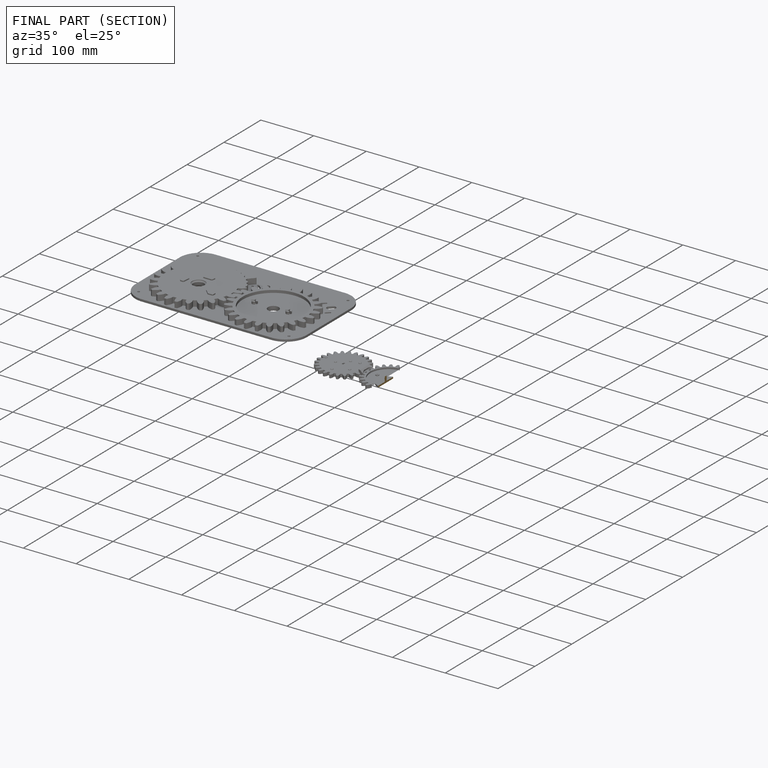
[diagram: finished part — half-section view (interior)]
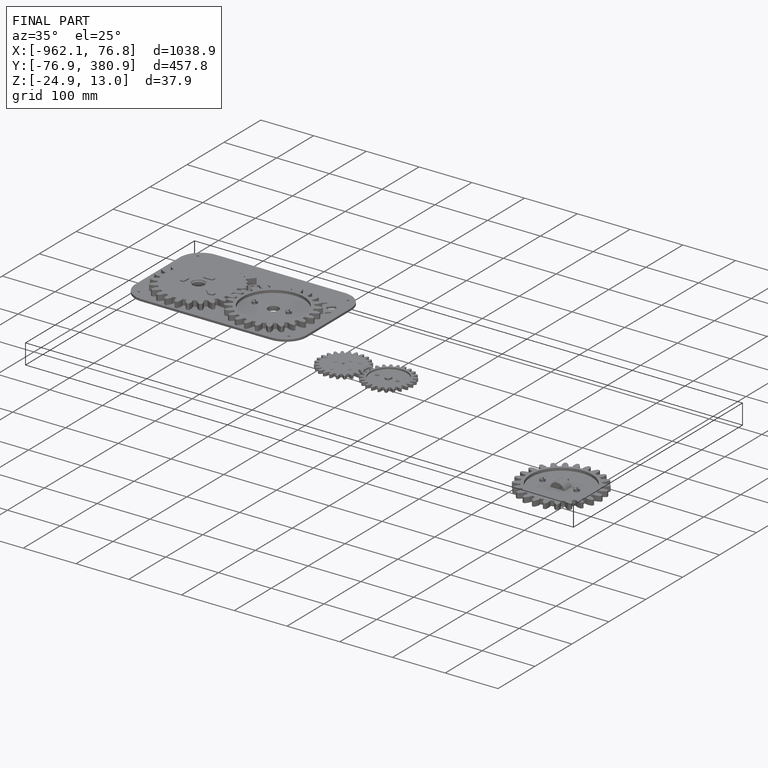
[diagram: finished part — iso view with bounding-box wireframe]
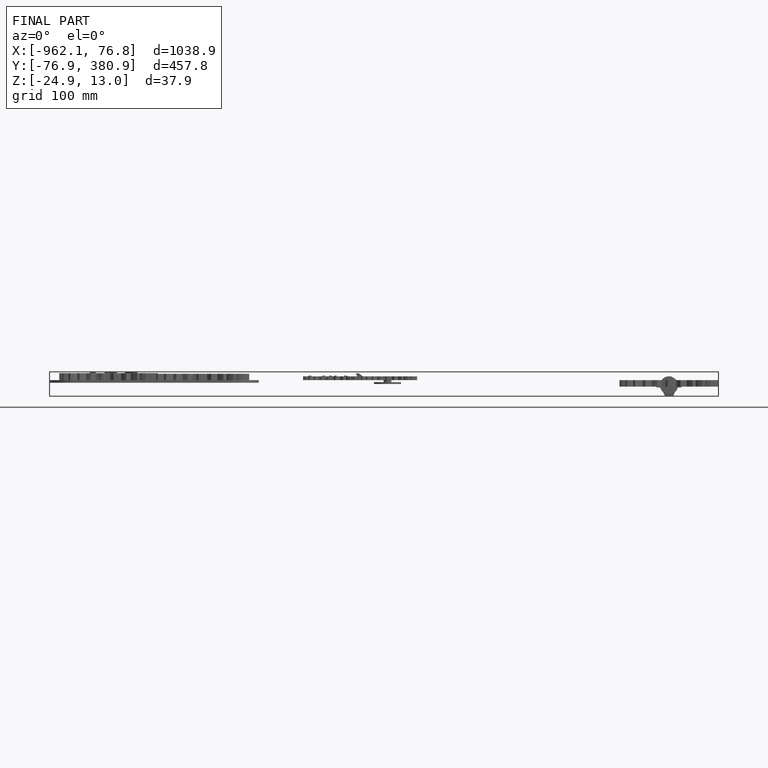
[diagram: finished part — front view with bounding-box wireframe]
